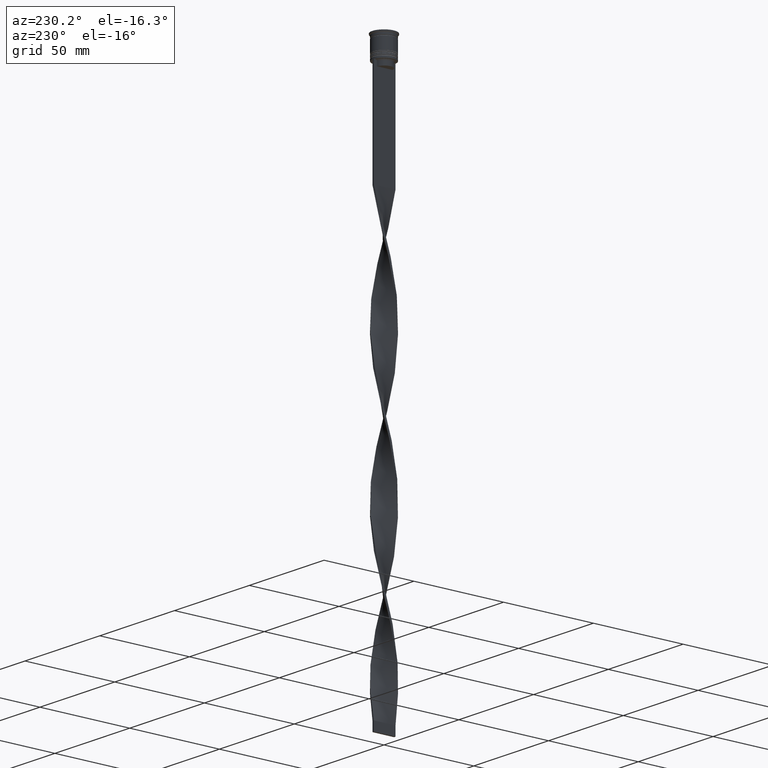
[diagram: clean part render]
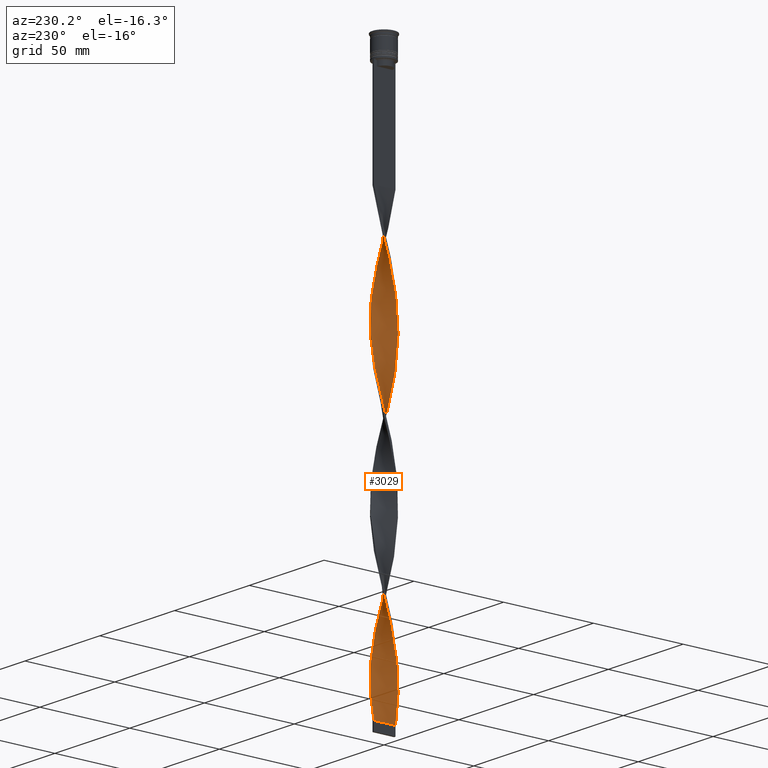
[diagram: same view with one face highlighted and labeled with its STEP entity id]
A machine part, auxiliary view. The second image highlights one B-rep face of the part: STEP entity #3029.
In plain terms, the highlighted face is a freeform B-spline surface patch.
Its self-contained STEP definition (entity closure, byte-faithful):
#3 = CARTESIAN_POINT ( 'NONE',  ( 5.393717298852748421, 2.717047055421897284, -201.9416666666667197 ) ) ;
#7 = CARTESIAN_POINT ( 'NONE',  ( -0.4999999999999994449, 5.999999999999999112, -307.5000000000000000 ) ) ;
#13 = CARTESIAN_POINT ( 'NONE',  ( -0.4999999999999994449, 5.999999999999999112, -307.5000000000000000 ) ) ;
#23 = CARTESIAN_POINT ( 'NONE',  ( -5.119043895260434240, 3.169446260531465498, -255.7166666666666970 ) ) ;
#37 = CARTESIAN_POINT ( 'NONE',  ( 2.278439736343096822, 5.573034394999980101, -295.5499999999999545 ) ) ;
#40 = CARTESIAN_POINT ( 'NONE',  ( -5.969343698769574047, 0.9173149989399200788, -182.0250000000000341 ) ) ;
#44 = CARTESIAN_POINT ( 'NONE',  ( -0.4447626199438162731, 6.004347276090943097, -72.48333333333334849 ) ) ;
#47 = CARTESIAN_POINT ( 'NONE',  ( -0.5000000000000009992, -6.000000000000000888, -307.5000000000000000 ) ) ;
#57 = CARTESIAN_POINT ( 'NONE',  ( -2.278439736343097710, -5.573034394999980101, -215.8833333333333542 ) ) ;
#61 = CARTESIAN_POINT ( 'NONE',  ( 1.839832417264293252, -5.752351491147218887, -158.1250000000000000 ) ) ;
#74 = CARTESIAN_POINT ( 'NONE',  ( 3.889087296526011261, 4.596194077712557835, -287.5833333333333712 ) ) ;
#78 = CARTESIAN_POINT ( 'NONE',  ( 0.4447626199438153849, -6.004347276090943097, -152.1500000000000057 ) ) ;
#97 = CARTESIAN_POINT ( 'NONE',  ( -5.847912811050710147, -1.432450960538953044, -191.9833333333333485 ) ) ;
#119 = CARTESIAN_POINT ( 'NONE',  ( -0.9722102409477118012, -5.960649146587693181, -146.1749999999999829 ) ) ;
#135 = CARTESIAN_POINT ( 'NONE',  ( 3.169446260531464610, -5.119043895260433352, -80.45000000000000284 ) ) ;
#138 = CARTESIAN_POINT ( 'NONE',  ( -0.4447626199438162731, 6.004347276090943097, -231.8166666666666629 ) ) ;
#157 = CARTESIAN_POINT ( 'NONE',  ( 2.766568768664325884, -5.368484725653162926, -78.45833333333334281 ) ) ;
#161 = CARTESIAN_POINT ( 'NONE',  ( -1.378573708102107664, 5.860847594958396023, -235.8000000000000114 ) ) ;
#169 = CARTESIAN_POINT ( 'NONE',  ( -5.368484725653164702, 2.766568768664326772, -98.37500000000001421 ) ) ;
#180 = CARTESIAN_POINT ( 'NONE',  ( 5.368484725653162926, -2.766568768664329436, -178.0416666666667140 ) ) ;
#186 = CARTESIAN_POINT ( 'NONE',  ( -2.329630224397262417, -5.551830600583448572, -140.1999999999999886 ) ) ;
#194 = CARTESIAN_POINT ( 'NONE',  ( -5.969343698769574935, 0.9173149989399200788, -182.0250000000000341 ) ) ;
#197 = CARTESIAN_POINT ( 'NONE',  ( -6.039350853412311260, 0.02778975905228984675, -269.6583333333334167 ) ) ;
#205 = CARTESIAN_POINT ( 'NONE',  ( -4.869603064867703779, 3.572323752398605556, -94.39166666666669414 ) ) ;
#215 = CARTESIAN_POINT ( 'NONE',  ( -5.119043895260434240, -3.169446260531463722, -199.9500000000000171 ) ) ;
#218 = CARTESIAN_POINT ( 'NONE',  ( -3.889087296526011706, 4.596194077712559611, -247.7500000000000284 ) ) ;
#240 = CARTESIAN_POINT ( 'NONE',  ( -1.432450960538953488, 5.847912811050710147, -152.1500000000000057 ) ) ;
#242 = CARTESIAN_POINT ( 'NONE',  ( 5.573034394999979213, -2.278439736343095934, -96.38333333333335418 ) ) ;
#257 = ORIENTED_EDGE ( 'NONE', *, *, #512, .F. ) ;
#260 = CARTESIAN_POINT ( 'NONE',  ( -0.4999999999999994449, 5.999999999999999112, -148.1666666666666572 ) ) ;
#262 = CARTESIAN_POINT ( 'NONE',  ( 5.147994592395920499, -3.122203016567364209, -92.40000000000000568 ) ) ;
#269 = CARTESIAN_POINT ( 'NONE',  ( 5.960649146587692293, -0.9722102409477147988, -186.0083333333333258 ) ) ;
#280 = CARTESIAN_POINT ( 'NONE',  ( 3.169446260531464610, -5.119043895260433352, -239.7833333333333599 ) ) ;
#284 = CARTESIAN_POINT ( 'NONE',  ( 5.368484725653162926, 2.766568768664325439, -118.2916666666666998 ) ) ;
#294 = CARTESIAN_POINT ( 'NONE',  ( -5.147994592395922275, -3.122203016567364653, -283.6000000000000227 ) ) ;
#306 = CARTESIAN_POINT ( 'NONE',  ( 3.122203016567365097, 5.147994592395919611, -132.2333333333333485 ) ) ;
#315 = CARTESIAN_POINT ( 'NONE',  ( -4.290116269486023093, -4.250815615339194053, -289.5750000000000455 ) ) ;
#325 = CARTESIAN_POINT ( 'NONE',  ( 5.735176475513731553, 1.892691680130197396, -273.6416666666666515 ) ) ;
#331 = VERTEX_POINT ( 'NONE', #3914 ) ;
#333 = CARTESIAN_POINT ( 'NONE',  ( 5.147994592395923164, 3.122203016567364209, -203.9333333333333655 ) ) ;
#341 = CARTESIAN_POINT ( 'NONE',  ( 3.889087296526011261, 4.596194077712557835, -287.5833333333333712 ) ) ;
#343 = CARTESIAN_POINT ( 'NONE',  ( 5.752351491147216223, -1.839832417264293918, -257.7083333333333144 ) ) ;
#347 = FACE_OUTER_BOUND ( 'NONE', #3536, .T. ) ;
#352 = CARTESIAN_POINT ( 'NONE',  ( 4.290116269486023981, 4.250815615339191389, -209.9083333333333599 ) ) ;
#371 = CARTESIAN_POINT ( 'NONE',  ( 3.931220010942312104, -4.560209340103447140, -243.7666666666666799 ) ) ;
#374 = CARTESIAN_POINT ( 'NONE',  ( -4.290116269486023093, -4.250815615339194053, -130.2416666666667027 ) ) ;
#377 = CARTESIAN_POINT ( 'NONE',  ( -0.9722102409477118012, -5.960649146587692293, -305.5083333333334394 ) ) ;
#386 = ORIENTED_EDGE ( 'NONE', *, *, #2012, .F. ) ;
#393 = CARTESIAN_POINT ( 'NONE',  ( 5.573034394999979213, -2.278439736343095934, -255.7166666666666970 ) ) ;
#396 = CARTESIAN_POINT ( 'NONE',  ( -3.169446260531465498, -5.119043895260433352, -136.2166666666666686 ) ) ;
#409 = CARTESIAN_POINT ( 'NONE',  ( 5.999999999999999112, 0.4999999999999998890, -267.6666666666667425 ) ) ;
#434 = CARTESIAN_POINT ( 'NONE',  ( 4.560209340103447140, 3.931220010942311216, -124.2666666666666799 ) ) ;
#451 = CARTESIAN_POINT ( 'NONE',  ( 0.9722102409477109131, -5.960649146587690517, -70.49166666666668846 ) ) ;
#453 = CARTESIAN_POINT ( 'NONE',  ( 5.960649146587693181, -0.9722102409477149099, -186.0083333333333258 ) ) ;
#467 = CARTESIAN_POINT ( 'NONE',  ( 5.860847594958394247, -1.378573708102107664, -100.3666666666666742 ) ) ;
#469 = CARTESIAN_POINT ( 'NONE',  ( -4.560209340103448916, 3.931220010942312992, -251.7333333333333769 ) ) ;
#491 = CARTESIAN_POINT ( 'NONE',  ( 4.869603064867703779, 3.572323752398604224, -122.2750000000000199 ) ) ;
#494 = CARTESIAN_POINT ( 'NONE',  ( 4.902271885939098794, 3.527358977712832910, -205.9250000000000114 ) ) ;
#502 = CARTESIAN_POINT ( 'NONE',  ( -5.960649146587692293, 0.9722102409477114682, -106.3416666666666686 ) ) ;
#511 = CARTESIAN_POINT ( 'NONE',  ( 3.122203016567365097, 5.147994592395919611, -132.2333333333333485 ) ) ;
#512 = EDGE_CURVE ( 'NONE', #2408, #331, #3768, .T. ) ;
#514 = CARTESIAN_POINT ( 'NONE',  ( 0.5000000000000002220, 6.000000000000000888, -227.8333333333333428 ) ) ;
#520 = CARTESIAN_POINT ( 'NONE',  ( -0.5000000000000009992, -6.000000000000000888, -148.1666666666666572 ) ) ;
#528 = CARTESIAN_POINT ( 'NONE',  ( -4.290116269486020428, 4.250815615339193165, -166.0916666666666970 ) ) ;
#530 = CARTESIAN_POINT ( 'NONE',  ( 6.039350853412311260, -0.02778975905228783447, -189.9916666666667027 ) ) ;
#539 = CARTESIAN_POINT ( 'NONE',  ( -1.378573708102107664, 5.860847594958396023, -76.46666666666666856 ) ) ;
#549 = CARTESIAN_POINT ( 'NONE',  ( 5.393717298852744868, -2.717047055421899948, -253.7250000000000227 ) ) ;
#552 = CARTESIAN_POINT ( 'NONE',  ( -1.892691680130197174, 5.735176475513731553, -154.1416666666666799 ) ) ;
#566 = CARTESIAN_POINT ( 'NONE',  ( 0.9173149989399214110, -5.969343698769576712, -154.1416666666666799 ) ) ;
#575 = CARTESIAN_POINT ( 'NONE',  ( 4.902271885939097906, -3.527358977712830246, -249.7416666666667027 ) ) ;
#577 = CARTESIAN_POINT ( 'NONE',  ( 0.9173149989399225213, 5.969343698769574047, -142.1916666666666913 ) ) ;
#585 = CARTESIAN_POINT ( 'NONE',  ( -3.527358977712831134, 4.902271885939099683, -245.7583333333333826 ) ) ;
#595 = CARTESIAN_POINT ( 'NONE',  ( 0.5000000000000002220, -5.999999999999999112, -227.8333333333333428 ) ) ;
#597 = CARTESIAN_POINT ( 'NONE',  ( 4.250815615339192277, 4.290116269486020428, -126.2583333333333258 ) ) ;
#604 = CARTESIAN_POINT ( 'NONE',  ( -5.573034394999981878, -2.278439736343096378, -279.6166666666666742 ) ) ;
#615 = CARTESIAN_POINT ( 'NONE',  ( 2.717047055421899948, 5.393717298852744868, -293.5583333333333940 ) ) ;
#618 = CARTESIAN_POINT ( 'NONE',  ( -0.9722102409477118012, -5.960649146587693181, -305.5083333333334963 ) ) ;
#627 = CARTESIAN_POINT ( 'NONE',  ( 4.902271885939098794, 3.527358977712832910, -205.9250000000000114 ) ) ;
#640 = CARTESIAN_POINT ( 'NONE',  ( 1.892691680130197840, -5.735176475513731553, -74.47500000000002274 ) ) ;
#649 = CARTESIAN_POINT ( 'NONE',  ( 0.9722102409477152429, 5.960649146587692293, -225.8416666666666970 ) ) ;
#661 = CARTESIAN_POINT ( 'NONE',  ( -6.004347276090940433, 0.4447626199438171057, -184.0166666666666515 ) ) ;
#666 = CARTESIAN_POINT ( 'NONE',  ( -5.573034394999981878, -2.278439736343096378, -120.2833333333333456 ) ) ;
#670 = CARTESIAN_POINT ( 'NONE',  ( 5.573034394999981878, 2.278439736343095934, -199.9500000000000171 ) ) ;
#677 = CARTESIAN_POINT ( 'NONE',  ( 3.122203016567365097, 5.147994592395919611, -291.5666666666667197 ) ) ;
#679 = CARTESIAN_POINT ( 'NONE',  ( 2.329630224397261085, -5.551830600583446795, -235.8000000000000114 ) ) ;
#683 = CARTESIAN_POINT ( 'NONE',  ( -1.432450960538955043, -5.847912811050711035, -144.1833333333333371 ) ) ;
#688 = CARTESIAN_POINT ( 'NONE',  ( -1.892691680130198728, -5.735176475513733330, -301.5250000000000341 ) ) ;
#700 = CARTESIAN_POINT ( 'NONE',  ( 5.847912811050710147, 1.432450960538953932, -271.6499999999999773 ) ) ;
#704 = CARTESIAN_POINT ( 'NONE',  ( 3.572323752398604224, -4.869603064867703779, -241.7750000000000625 ) ) ;
#707 = CARTESIAN_POINT ( 'NONE',  ( -4.250815615339194053, 4.290116269486022205, -90.40833333333334565 ) ) ;
#722 = CARTESIAN_POINT ( 'NONE',  ( 0.5000000000000002220, -5.999999999999999112, -227.8333333333333428 ) ) ;
#723 = CARTESIAN_POINT ( 'NONE',  ( 5.147994592395920499, -3.122203016567364209, -92.40000000000000568 ) ) ;
#739 = CARTESIAN_POINT ( 'NONE',  ( 5.860847594958394247, -1.378573708102107664, -259.7000000000000455 ) ) ;
#740 = CARTESIAN_POINT ( 'NONE',  ( 5.393717298852744868, -2.717047055421899948, -94.39166666666669414 ) ) ;
#744 = CARTESIAN_POINT ( 'NONE',  ( -6.039350853412311260, 0.02778975905228984675, -110.3250000000000171 ) ) ;
#767 = CARTESIAN_POINT ( 'NONE',  ( -1.839832417264293918, 5.752351491147217999, -237.7916666666667140 ) ) ;
#781 = CARTESIAN_POINT ( 'NONE',  ( 5.573034394999979213, -2.278439736343095934, -96.38333333333335418 ) ) ;
#783 = CARTESIAN_POINT ( 'NONE',  ( -3.527358977712831134, 4.902271885939099683, -245.7583333333333826 ) ) ;
#791 = CARTESIAN_POINT ( 'NONE',  ( 2.717047055421899060, -5.393717298852747533, -162.1083333333333769 ) ) ;
#802 = CARTESIAN_POINT ( 'NONE',  ( -4.290116269486023093, -4.250815615339194053, -289.5750000000000455 ) ) ;
#809 = CARTESIAN_POINT ( 'NONE',  ( -0.4447626199438162731, 6.004347276090943097, -72.48333333333334849 ) ) ;
#824 = CARTESIAN_POINT ( 'NONE',  ( -3.122203016567365541, -5.147994592395919611, -211.9000000000000057 ) ) ;
#827 = CARTESIAN_POINT ( 'NONE',  ( 3.169446260531466386, 5.119043895260433352, -215.8833333333333542 ) ) ;
#834 = CARTESIAN_POINT ( 'NONE',  ( -5.847912811050711923, 1.432450960538954821, -104.3499999999999943 ) ) ;
#843 = CARTESIAN_POINT ( 'NONE',  ( 4.596194077712558723, -3.889087296526011261, -247.7500000000000284 ) ) ;
#845 = CARTESIAN_POINT ( 'NONE',  ( -5.368484725653164702, 2.766568768664326772, -257.7083333333333144 ) ) ;
#853 = CARTESIAN_POINT ( 'NONE',  ( -1.892691680130198728, -5.735176475513733330, -142.1916666666666913 ) ) ;
#860 = ORIENTED_EDGE ( 'NONE', *, *, #1425, .T. ) ;
#862 = CARTESIAN_POINT ( 'NONE',  ( 1.432450960538954154, -5.847912811050710147, -231.8166666666666629 ) ) ;
#864 = CARTESIAN_POINT ( 'NONE',  ( -3.169446260531463722, 5.119043895260433352, -160.1166666666666742 ) ) ;
#872 = CARTESIAN_POINT ( 'NONE',  ( -1.839832417264293918, 5.752351491147217999, -78.45833333333334281 ) ) ;
#883 = CARTESIAN_POINT ( 'NONE',  ( 1.892691680130197840, -5.735176475513731553, -233.8083333333333371 ) ) ;
#888 = CARTESIAN_POINT ( 'NONE',  ( -5.393717298852745756, 2.717047055421897728, -174.0583333333333371 ) ) ;
#901 = CARTESIAN_POINT ( 'NONE',  ( 1.892691680130196952, 5.735176475513733330, -221.8583333333333769 ) ) ;
#910 = CARTESIAN_POINT ( 'NONE',  ( -4.560209340103448028, -3.931220010942310328, -203.9333333333333655 ) ) ;
#912 = CARTESIAN_POINT ( 'NONE',  ( 0.5000000000000002220, -5.999999999999999112, -68.50000000000000000 ) ) ;
#922 = CARTESIAN_POINT ( 'NONE',  ( -5.551830600583448572, 2.329630224397261973, -259.7000000000000455 ) ) ;
#933 = CARTESIAN_POINT ( 'NONE',  ( 4.596194077712558723, -3.889087296526011261, -88.41666666666667140 ) ) ;
#941 = CARTESIAN_POINT ( 'NONE',  ( 5.551830600583448572, -2.329630224397262417, -180.0333333333333599 ) ) ;
#953 = CARTESIAN_POINT ( 'NONE',  ( 6.004347276090941321, -0.4447626199438162731, -104.3499999999999943 ) ) ;
#964 = CARTESIAN_POINT ( 'NONE',  ( -5.393717298852747533, -2.717047055421899948, -281.6083333333334053 ) ) ;
#973 = CARTESIAN_POINT ( 'NONE',  ( 5.573034394999979213, -2.278439736343095934, -255.7166666666666970 ) ) ;
#976 = CARTESIAN_POINT ( 'NONE',  ( 4.596194077712558723, -3.889087296526011261, -247.7500000000000284 ) ) ;
#980 = CARTESIAN_POINT ( 'NONE',  ( -3.122203016567365541, 5.147994592395922275, -84.43333333333333712 ) ) ;
#983 = CARTESIAN_POINT ( 'NONE',  ( 5.752351491147217111, 1.839832417264295694, -197.9583333333333712 ) ) ;
#995 = CARTESIAN_POINT ( 'NONE',  ( 5.969343698769574047, -0.9173149989399220772, -261.6916666666666629 ) ) ;
#999 = CARTESIAN_POINT ( 'NONE',  ( -4.902271885939099683, -3.527358977712830246, -126.2583333333333258 ) ) ;
#1013 = CARTESIAN_POINT ( 'NONE',  ( -6.039350853412309483, -0.02778975905228582913, -186.0083333333333258 ) ) ;
#1037 = CARTESIAN_POINT ( 'NONE',  ( -5.551830600583447684, -2.329630224397259752, -195.9666666666666686 ) ) ;
#1040 = CARTESIAN_POINT ( 'NONE',  ( -1.378573708102107664, 5.860847594958396023, -76.46666666666666856 ) ) ;
#1055 = CARTESIAN_POINT ( 'NONE',  ( -5.368484725653162037, -2.766568768664326772, -197.9583333333333997 ) ) ;
#1058 = CARTESIAN_POINT ( 'NONE',  ( -1.839832417264293918, 5.752351491147217999, -78.45833333333332860 ) ) ;
#1077 = CARTESIAN_POINT ( 'NONE',  ( -5.551830600583448572, 2.329630224397261973, -259.7000000000000455 ) ) ;
#1101 = CARTESIAN_POINT ( 'NONE',  ( 3.931220010942314769, 4.560209340103448028, -211.9000000000000057 ) ) ;
#1116 = CARTESIAN_POINT ( 'NONE',  ( 6.039350853412309483, 0.02778975905228925000, -106.3416666666666686 ) ) ;
#1119 = CARTESIAN_POINT ( 'NONE',  ( -3.122203016567365541, 5.147994592395922275, -243.7666666666666799 ) ) ;
#1125 = CARTESIAN_POINT ( 'NONE',  ( -5.860847594958396911, -1.378573708102107220, -116.3000000000000114 ) ) ;
#1134 = CARTESIAN_POINT ( 'NONE',  ( 2.278439736343096822, 5.573034394999980101, -136.2166666666666686 ) ) ;
#1136 = CARTESIAN_POINT ( 'NONE',  ( -6.004347276090943097, -0.4447626199438159400, -271.6499999999999773 ) ) ;
#1145 = CARTESIAN_POINT ( 'NONE',  ( -5.969343698769576712, -0.9173149989399216331, -114.3083333333333655 ) ) ;
#1156 = CARTESIAN_POINT ( 'NONE',  ( 0.9722102409477109131, -5.960649146587690517, -229.8250000000000171 ) ) ;
#1159 = CARTESIAN_POINT ( 'NONE',  ( 2.766568768664329880, 5.368484725653162926, -217.8750000000000568 ) ) ;
#1162 = DIRECTION ( 'NONE',  ( 0.000000000000000000, 1.000000000000000000, 0.000000000000000000 ) ) ;
#1168 = CARTESIAN_POINT ( 'NONE',  ( -2.766568768664327216, -5.368484725653164702, -138.2083333333333144 ) ) ;
#1169 = CARTESIAN_POINT ( 'NONE',  ( -0.5000000000000009992, -6.000000000000000888, -307.5000000000000000 ) ) ;
#1178 = CARTESIAN_POINT ( 'NONE',  ( -0.02778975905228881632, 6.039350853412309483, -146.1750000000000114 ) ) ;
#1180 = CARTESIAN_POINT ( 'NONE',  ( 3.931220010942312104, -4.560209340103447140, -84.43333333333333712 ) ) ;
#1188 = CARTESIAN_POINT ( 'NONE',  ( -2.717047055421899948, 5.393717298852747533, -82.44166666666667709 ) ) ;
#1197 = CARTESIAN_POINT ( 'NONE',  ( -3.527358977712832910, -4.902271885939095242, -209.9083333333333599 ) ) ;
#1200 = CARTESIAN_POINT ( 'NONE',  ( -3.572323752398603336, 4.869603064867703779, -162.1083333333333769 ) ) ;
#1207 = CARTESIAN_POINT ( 'NONE',  ( -0.4447626199438162731, 6.004347276090943097, -231.8166666666666629 ) ) ;
#1217 = CARTESIAN_POINT ( 'NONE',  ( -5.551830600583447684, -2.329630224397259752, -195.9666666666666686 ) ) ;
#1221 = CARTESIAN_POINT ( 'NONE',  ( -4.902271885939096130, 3.527358977712832910, -170.0750000000000455 ) ) ;
#1232 = CARTESIAN_POINT ( 'NONE',  ( 6.004347276090943097, 0.4447626199438150518, -191.9833333333333485 ) ) ;
#1241 = CARTESIAN_POINT ( 'NONE',  ( 5.551830600583447684, 2.329630224397260641, -116.3000000000000114 ) ) ;
#1249 = CARTESIAN_POINT ( 'NONE',  ( -0.9173149989399220772, 5.969343698769576712, -233.8083333333333371 ) ) ;
#1260 = CARTESIAN_POINT ( 'NONE',  ( 4.560209340103447140, 3.931220010942311216, -124.2666666666666799 ) ) ;
#1268 = CARTESIAN_POINT ( 'NONE',  ( -3.122203016567365541, 5.147994592395922275, -243.7666666666666799 ) ) ;
#1278 = CARTESIAN_POINT ( 'NONE',  ( 5.969343698769574935, -0.9173149989399220772, -261.6916666666666629 ) ) ;
#1281 = CARTESIAN_POINT ( 'NONE',  ( -0.02778975905228881632, 6.039350853412309483, -305.5083333333334963 ) ) ;
#1290 = CARTESIAN_POINT ( 'NONE',  ( -5.847912811050711923, 1.432450960538954821, -263.6833333333333940 ) ) ;
#1301 = CARTESIAN_POINT ( 'NONE',  ( 4.250815615339192277, 4.290116269486020428, -285.5916666666666970 ) ) ;
#1304 = CARTESIAN_POINT ( 'NONE',  ( -3.527358977712832910, -4.902271885939095242, -209.9083333333333883 ) ) ;
#1311 = CARTESIAN_POINT ( 'NONE',  ( -2.766568768664327216, -5.368484725653164702, -297.5416666666666856 ) ) ;
#1321 = CARTESIAN_POINT ( 'NONE',  ( 4.869603064867703779, 3.572323752398604224, -281.6083333333334622 ) ) ;
#1325 = CARTESIAN_POINT ( 'NONE',  ( 2.717047055421899060, -5.393717298852746644, -162.1083333333333769 ) ) ;
#1339 = CARTESIAN_POINT ( 'NONE',  ( 3.122203016567365097, 5.147994592395919611, -291.5666666666667197 ) ) ;
#1362 = CARTESIAN_POINT ( 'NONE',  ( 5.119043895260433352, 3.169446260531464610, -279.6166666666666742 ) ) ;
#1363 = CARTESIAN_POINT ( 'NONE',  ( 4.290116269486021316, -4.250815615339192277, -86.42499999999999716 ) ) ;
#1365 = CARTESIAN_POINT ( 'NONE',  ( -5.368484725653164702, 2.766568768664326772, -98.37500000000002842 ) ) ;
#1383 = CARTESIAN_POINT ( 'NONE',  ( -5.147994592395922275, -3.122203016567364653, -124.2666666666666799 ) ) ;
#1400 = CARTESIAN_POINT ( 'NONE',  ( 5.969343698769574935, -0.9173149989399220772, -102.3583333333333485 ) ) ;
#1403 = CARTESIAN_POINT ( 'NONE',  ( -5.147994592395922275, -3.122203016567364653, -283.6000000000000227 ) ) ;
#1424 = CARTESIAN_POINT ( 'NONE',  ( 5.735176475513731553, 1.892691680130197396, -114.3083333333333655 ) ) ;
#1425 = EDGE_CURVE ( 'NONE', #3540, #331, #2397, .T. ) ;
#1427 = CARTESIAN_POINT ( 'NONE',  ( -5.860847594958396911, -1.378573708102107220, -275.6333333333333258 ) ) ;
#1433 = CARTESIAN_POINT ( 'NONE',  ( -3.931220010942313881, -4.560209340103448028, -132.2333333333333485 ) ) ;
#1443 = CARTESIAN_POINT ( 'NONE',  ( -6.000000000000000888, 0.5000000000000005551, -267.6666666666667425 ) ) ;
#1458 = CARTESIAN_POINT ( 'NONE',  ( -2.717047055421898172, -5.393717298852745756, -213.8916666666666799 ) ) ;
#1460 = CARTESIAN_POINT ( 'NONE',  ( 1.892691680130196952, 5.735176475513733330, -221.8583333333333769 ) ) ;
#1485 = CARTESIAN_POINT ( 'NONE',  ( -0.4447626199438174388, -6.004347276090940433, -223.8500000000000227 ) ) ;
#1488 = CARTESIAN_POINT ( 'NONE',  ( -0.5000000000000009992, -6.000000000000000888, -307.5000000000000000 ) ) ;
#1506 = CARTESIAN_POINT ( 'NONE',  ( 3.931220010942312104, -4.560209340103447140, -243.7666666666666799 ) ) ;
#1508 = CARTESIAN_POINT ( 'NONE',  ( 5.847912811050710147, 1.432450960538953932, -112.3166666666666771 ) ) ;
#1515 = CARTESIAN_POINT ( 'NONE',  ( -6.000000000000000888, 0.5000000000000005551, -108.3333333333333428 ) ) ;
#1526 = CARTESIAN_POINT ( 'NONE',  ( -2.329630224397260196, 5.551830600583447684, -156.1333333333333542 ) ) ;
#1528 = CARTESIAN_POINT ( 'NONE',  ( 4.902271885939097906, -3.527358977712830246, -90.40833333333334565 ) ) ;
#1536 = CARTESIAN_POINT ( 'NONE',  ( 2.329630224397263305, 5.551830600583448572, -219.8666666666666742 ) ) ;
#1548 = CARTESIAN_POINT ( 'NONE',  ( -4.596194077712557835, 3.889087296526011706, -168.0833333333333712 ) ) ;
#1551 = CARTESIAN_POINT ( 'NONE',  ( -2.766568768664327216, -5.368484725653164702, -297.5416666666666856 ) ) ;
#1560 = CARTESIAN_POINT ( 'NONE',  ( -4.902271885939099683, -3.527358977712830246, -285.5916666666666970 ) ) ;
#1570 = CARTESIAN_POINT ( 'NONE',  ( 2.717047055421899948, 5.393717298852743980, -134.2249999999999943 ) ) ;
#1579 = CARTESIAN_POINT ( 'NONE',  ( -3.931220010942313881, -4.560209340103448028, -291.5666666666667197 ) ) ;
#1588 = CARTESIAN_POINT ( 'NONE',  ( 5.999999999999999112, 0.4999999999999998890, -267.6666666666667425 ) ) ;
#1590 = CARTESIAN_POINT ( 'NONE',  ( -5.735176475513732441, -1.892691680130194065, -193.9749999999999943 ) ) ;
#1599 = CARTESIAN_POINT ( 'NONE',  ( -2.717047055421899948, 5.393717298852747533, -241.7750000000000341 ) ) ;
#1610 = CARTESIAN_POINT ( 'NONE',  ( 5.752351491147216223, -1.839832417264293918, -257.7083333333333144 ) ) ;
#1613 = CARTESIAN_POINT ( 'NONE',  ( 5.960649146587691405, 0.9722102409477105800, -269.6583333333334167 ) ) ;
#1620 = VECTOR ( 'NONE', #1162, 1000.000000000000000 ) ;
#1623 = CARTESIAN_POINT ( 'NONE',  ( 5.119043895260433352, -3.169446260531466386, -176.0500000000000114 ) ) ;
#1638 = CARTESIAN_POINT ( 'NONE',  ( 6.004347276090941321, -0.4447626199438162731, -263.6833333333333940 ) ) ;
#1642 = CARTESIAN_POINT ( 'NONE',  ( -5.960649146587693181, 0.9722102409477114682, -106.3416666666666686 ) ) ;
#1659 = CARTESIAN_POINT ( 'NONE',  ( 5.368484725653162926, 2.766568768664325439, -277.6250000000000568 ) ) ;
#1663 = CARTESIAN_POINT ( 'NONE',  ( -6.004347276090943097, -0.4447626199438159400, -112.3166666666666771 ) ) ;
#1677 = CARTESIAN_POINT ( 'NONE',  ( -2.717047055421898172, -5.393717298852744868, -213.8916666666666799 ) ) ;
#1704 = CARTESIAN_POINT ( 'NONE',  ( 4.250815615339192277, 4.290116269486020428, -126.2583333333333400 ) ) ;
#1707 = CARTESIAN_POINT ( 'NONE',  ( 0.5000000000000002220, 6.000000000000000888, -68.50000000000000000 ) ) ;
#1725 = CARTESIAN_POINT ( 'NONE',  ( 0.9722102409477153540, 5.960649146587693181, -225.8416666666666970 ) ) ;
#1739 = CARTESIAN_POINT ( 'NONE',  ( 5.960649146587690517, 0.9722102409477104690, -110.3250000000000171 ) ) ;
#1741 = CARTESIAN_POINT ( 'NONE',  ( -3.931220010942313881, -4.560209340103448028, -291.5666666666667197 ) ) ;
#1749 = CARTESIAN_POINT ( 'NONE',  ( -3.527358977712831134, 4.902271885939099683, -86.42499999999999716 ) ) ;
#1763 = CARTESIAN_POINT ( 'NONE',  ( 3.931220010942312104, -4.560209340103447140, -84.43333333333333712 ) ) ;
#1765 = CARTESIAN_POINT ( 'NONE',  ( -0.9173149989399220772, 5.969343698769575823, -233.8083333333333371 ) ) ;
#1772 = CARTESIAN_POINT ( 'NONE',  ( -5.573034394999981878, -2.278439736343096378, -120.2833333333333456 ) ) ;
#1782 = CARTESIAN_POINT ( 'NONE',  ( -5.752351491147214446, 1.839832417264296804, -178.0416666666667140 ) ) ;
#1784 = CARTESIAN_POINT ( 'NONE',  ( -2.717047055421899948, 5.393717298852746644, -241.7750000000000625 ) ) ;
#1800 = CARTESIAN_POINT ( 'NONE',  ( -5.860847594958394247, 1.378573708102108331, -180.0333333333333599 ) ) ;
#1803 = CARTESIAN_POINT ( 'NONE',  ( 5.735176475513733330, -1.892691680130196730, -182.0250000000000341 ) ) ;
#1812 = CARTESIAN_POINT ( 'NONE',  ( -2.278439736343096378, 5.573034394999981878, -80.45000000000000284 ) ) ;
#1821 = CARTESIAN_POINT ( 'NONE',  ( 1.378573708102107886, 5.860847594958394247, -140.1999999999999886 ) ) ;
#1824 = CARTESIAN_POINT ( 'NONE',  ( 3.572323752398604224, -4.869603064867703779, -82.44166666666666288 ) ) ;
#1833 = CARTESIAN_POINT ( 'NONE',  ( 2.278439736343095934, -5.573034394999981878, -160.1166666666666742 ) ) ;
#1841 = CARTESIAN_POINT ( 'NONE',  ( -3.931220010942311216, 4.560209340103447140, -164.1000000000000227 ) ) ;
#1843 = CARTESIAN_POINT ( 'NONE',  ( 5.969343698769574047, -0.9173149989399220772, -102.3583333333333343 ) ) ;
#1850 = CARTESIAN_POINT ( 'NONE',  ( -4.250815615339194053, 4.290116269486022205, -249.7416666666667027 ) ) ;
#1860 = CARTESIAN_POINT ( 'NONE',  ( -4.869603064867703779, -3.572323752398602004, -201.9416666666667197 ) ) ;
#1862 = CARTESIAN_POINT ( 'NONE',  ( -5.860847594958394247, 1.378573708102108331, -180.0333333333333599 ) ) ;
#1870 = CARTESIAN_POINT ( 'NONE',  ( 5.368484725653162926, -2.766568768664329436, -178.0416666666667140 ) ) ;
#1882 = CARTESIAN_POINT ( 'NONE',  ( 5.368484725653162926, 2.766568768664325439, -277.6250000000000568 ) ) ;
#1886 = CARTESIAN_POINT ( 'NONE',  ( 6.039350853412309483, 0.02778975905228925000, -106.3416666666666686 ) ) ;
#1895 = CARTESIAN_POINT ( 'NONE',  ( -5.960649146587692293, 0.9722102409477114682, -265.6750000000000682 ) ) ;
#1906 = CARTESIAN_POINT ( 'NONE',  ( 5.119043895260433352, 3.169446260531464610, -120.2833333333333456 ) ) ;
#1916 = CARTESIAN_POINT ( 'NONE',  ( -6.000000000000000888, 0.5000000000000005551, -267.6666666666667425 ) ) ;
#1925 = CARTESIAN_POINT ( 'NONE',  ( 1.839832417264293918, 5.752351491147216223, -297.5416666666666856 ) ) ;
#1927 = CARTESIAN_POINT ( 'NONE',  ( -4.560209340103448028, -3.931220010942310328, -203.9333333333333655 ) ) ;
#1933 = CARTESIAN_POINT ( 'NONE',  ( 0.02778975905228941307, 6.039350853412311260, -70.49166666666670267 ) ) ;
#1936 = CARTESIAN_POINT ( 'NONE',  ( 4.560209340103448028, -3.931220010942313881, -172.0666666666666629 ) ) ;
#1946 = CARTESIAN_POINT ( 'NONE',  ( 6.004347276090941321, -0.4447626199438162731, -263.6833333333333940 ) ) ;
#1949 = CARTESIAN_POINT ( 'NONE',  ( 5.551830600583447684, 2.329630224397260641, -275.6333333333333258 ) ) ;
#1954 = CARTESIAN_POINT ( 'NONE',  ( -0.02778975905229016594, -6.039350853412311260, -150.1583333333333599 ) ) ;
#1971 = CARTESIAN_POINT ( 'NONE',  ( 4.869603064867703779, 3.572323752398604224, -281.6083333333334053 ) ) ;
#1974 = CARTESIAN_POINT ( 'NONE',  ( 4.290116269486021316, -4.250815615339192277, -245.7583333333333826 ) ) ;
#1977 = CARTESIAN_POINT ( 'NONE',  ( -4.869603064867704667, 3.572323752398605556, -94.39166666666669414 ) ) ;
#1993 = CARTESIAN_POINT ( 'NONE',  ( -5.960649146587691405, -0.9722102409477125784, -189.9916666666667027 ) ) ;
#1996 = CARTESIAN_POINT ( 'NONE',  ( -4.560209340103448916, 3.931220010942312992, -92.40000000000000568 ) ) ;
#2010 = CARTESIAN_POINT ( 'NONE',  ( -5.999999999999999112, -0.4999999999999991673, -188.0000000000000000 ) ) ;
#2012 = EDGE_CURVE ( 'NONE', #2466, #2408, #3954, .T. ) ;
#2013 = CARTESIAN_POINT ( 'NONE',  ( 5.752351491147216223, -1.839832417264293918, -98.37500000000001421 ) ) ;
#2016 = CARTESIAN_POINT ( 'NONE',  ( -5.393717298852746644, -2.717047055421899948, -122.2750000000000341 ) ) ;
#2041 = CARTESIAN_POINT ( 'NONE',  ( 6.004347276090943097, 0.4447626199438150518, -191.9833333333333485 ) ) ;
#2054 = CARTESIAN_POINT ( 'NONE',  ( -0.5000000000000004441, -2.000000000000000888, -307.5000000000000000 ) ) ;
#2055 = CARTESIAN_POINT ( 'NONE',  ( 5.999999999999999112, 0.4999999999999998890, -108.3333333333333428 ) ) ;
#2057 = CARTESIAN_POINT ( 'NONE',  ( 5.847912811050711035, -1.432450960538955265, -184.0166666666666515 ) ) ;
#2065 = CARTESIAN_POINT ( 'NONE',  ( 3.122203016567364653, -5.147994592395922275, -164.1000000000000227 ) ) ;
#2074 = CARTESIAN_POINT ( 'NONE',  ( 6.004347276090941321, -0.4447626199438162731, -104.3499999999999943 ) ) ;
#2077 = CARTESIAN_POINT ( 'NONE',  ( 5.119043895260433352, -3.169446260531466386, -176.0500000000000114 ) ) ;
#2079 = CARTESIAN_POINT ( 'NONE',  ( 0.5000000000000002220, -6.000000000000000000, -68.50000000000000000 ) ) ;
#2085 = CARTESIAN_POINT ( 'NONE',  ( -0.9722102409477118012, -5.960649146587692293, -146.1750000000000114 ) ) ;
#2099 = CARTESIAN_POINT ( 'NONE',  ( -5.847912811050710147, -1.432450960538953044, -191.9833333333333485 ) ) ;
#2101 = CARTESIAN_POINT ( 'NONE',  ( 2.329630224397263305, 5.551830600583448572, -219.8666666666666742 ) ) ;
#2107 = CARTESIAN_POINT ( 'NONE',  ( -0.9173149989399220772, 5.969343698769576712, -74.47500000000000853 ) ) ;
#2116 = CARTESIAN_POINT ( 'NONE',  ( 3.527358977712831134, 4.902271885939097906, -130.2416666666667027 ) ) ;
#2119 = CARTESIAN_POINT ( 'NONE',  ( 5.752351491147217111, 1.839832417264295694, -197.9583333333333997 ) ) ;
#2127 = CARTESIAN_POINT ( 'NONE',  ( 0.5000000000000002220, 6.000000000000000888, -68.50000000000000000 ) ) ;
#2135 = CARTESIAN_POINT ( 'NONE',  ( -4.902271885939096130, 3.527358977712832910, -170.0750000000000455 ) ) ;
#2137 = CARTESIAN_POINT ( 'NONE',  ( 5.960649146587691405, 0.9722102409477105800, -110.3250000000000171 ) ) ;
#2146 = CARTESIAN_POINT ( 'NONE',  ( -0.02778975905229016594, -6.039350853412312148, -150.1583333333333599 ) ) ;
#2158 = CARTESIAN_POINT ( 'NONE',  ( 2.329630224397261085, -5.551830600583446795, -235.8000000000000114 ) ) ;
#2161 = CARTESIAN_POINT ( 'NONE',  ( -2.329630224397262417, -5.551830600583448572, -299.5333333333333030 ) ) ;
#2170 = CARTESIAN_POINT ( 'NONE',  ( -1.839832417264293918, 5.752351491147217999, -237.7916666666667140 ) ) ;
#2179 = CARTESIAN_POINT ( 'NONE',  ( -0.9173149989399203008, -5.969343698769574935, -221.8583333333333769 ) ) ;
#2181 = CARTESIAN_POINT ( 'NONE',  ( -5.573034394999980101, 2.278439736343096822, -176.0500000000000114 ) ) ;
#2190 = CARTESIAN_POINT ( 'NONE',  ( -5.860847594958396911, -1.378573708102107220, -275.6333333333333258 ) ) ;
#2201 = CARTESIAN_POINT ( 'NONE',  ( -3.169446260531465498, -5.119043895260433352, -295.5499999999999545 ) ) ;
#2208 = CARTESIAN_POINT ( 'NONE',  ( 5.860847594958396911, 1.378573708102106554, -195.9666666666666686 ) ) ;
#2223 = CARTESIAN_POINT ( 'NONE',  ( 1.432450960538954154, -5.847912811050710147, -72.48333333333334849 ) ) ;
#2233 = CARTESIAN_POINT ( 'NONE',  ( -4.560209340103448916, 3.931220010942312992, -251.7333333333333769 ) ) ;
#2242 = CARTESIAN_POINT ( 'NONE',  ( 6.039350853412309483, 0.02778975905228925000, -265.6750000000000682 ) ) ;
#2246 = CARTESIAN_POINT ( 'NONE',  ( -1.378573708102108997, -5.860847594958394247, -219.8666666666666742 ) ) ;
#2251 = CARTESIAN_POINT ( 'NONE',  ( -5.969343698769575823, -0.9173149989399215221, -114.3083333333333655 ) ) ;
#2255 = CARTESIAN_POINT ( 'NONE',  ( -3.169446260531465498, -5.119043895260433352, -295.5499999999999545 ) ) ;
#2263 = CARTESIAN_POINT ( 'NONE',  ( -0.4999999999999994449, 5.999999999999999112, -307.5000000000000000 ) ) ;
#2267 = CARTESIAN_POINT ( 'NONE',  ( 5.847912811050710147, 1.432450960538953932, -271.6499999999999773 ) ) ;
#2274 = CARTESIAN_POINT ( 'NONE',  ( -2.329630224397262417, -5.551830600583448572, -140.1999999999999886 ) ) ;
#2277 = CARTESIAN_POINT ( 'NONE',  ( -2.329630224397262417, -5.551830600583448572, -299.5333333333333030 ) ) ;
#2289 = CARTESIAN_POINT ( 'NONE',  ( -3.889087296526011706, -4.596194077712557835, -207.9166666666666572 ) ) ;
#2313 = CARTESIAN_POINT ( 'NONE',  ( -1.839832417264297026, -5.752351491147214446, -217.8750000000000568 ) ) ;
#2316 = CARTESIAN_POINT ( 'NONE',  ( -1.892691680130198728, -5.735176475513733330, -142.1916666666666913 ) ) ;
#2329 = CARTESIAN_POINT ( 'NONE',  ( 1.378573708102107886, 5.860847594958394247, -299.5333333333333030 ) ) ;
#2330 = CARTESIAN_POINT ( 'NONE',  ( 4.596194077712558723, -3.889087296526011261, -88.41666666666667140 ) ) ;
#2333 = CARTESIAN_POINT ( 'NONE',  ( -3.527358977712831134, 4.902271885939099683, -86.42499999999999716 ) ) ;
#2348 = CARTESIAN_POINT ( 'NONE',  ( 3.572323752398604224, -4.869603064867703779, -82.44166666666667709 ) ) ;
#2352 = CARTESIAN_POINT ( 'NONE',  ( -5.847912811050711923, 1.432450960538954821, -263.6833333333333940 ) ) ;
#2371 = CARTESIAN_POINT ( 'NONE',  ( 1.432450960538954154, -5.847912811050710147, -72.48333333333334849 ) ) ;
#2373 = CARTESIAN_POINT ( 'NONE',  ( -4.596194077712559611, -3.889087296526011706, -287.5833333333333712 ) ) ;
#2381 = CARTESIAN_POINT ( 'NONE',  ( -4.250815615339194053, 4.290116269486022205, -90.40833333333335986 ) ) ;
#2389 = CARTESIAN_POINT ( 'NONE',  ( 5.551830600583447684, 2.329630224397260641, -116.3000000000000114 ) ) ;
#2392 = CARTESIAN_POINT ( 'NONE',  ( 3.572323752398604224, 4.869603064867705555, -213.8916666666666799 ) ) ;
#2397 =( BOUNDED_CURVE ( )  B_SPLINE_CURVE ( 2, ( #3258, #451, #2371, #3916, #2987, #157, #135, #2348, #1763, #1363, #2330, #3591, #723, #740, #781, #2013, #467, #1400, #2074, #1116, #2055, #1739, #2679, #1424, #2389, #3280, #3338, #491, #434, #1704, #4061, #2116, #511, #3109, #1134, #2736, #1821, #2762, #3362, #1178, #260, #3045, #240, #2497, #1526, #2801, #4020, #3996, #1841, #528, #1548, #2135, #2473, #2454, #2782, #1782, #1800, #194, #4040, #3063, #3724, #3665, #2099, #3705, #1217, #3752, #215, #1860, #910, #3089, #2409, #1197, #824, #1458, #3443, #2824, #2434, #2179, #1485, #3424, #595, #1156, #862, #883, #2158, #3127, #280, #3687, #1506, #3396, #843, #575, #3379, #549, #973, #1610, #3171, #1278, #1946, #2242, #1588, #2884, #700, #3235, #3487, #1882, #2557, #1971, #3462, #1301, #341, #3547, #677, #615, #37, #1925, #3834, #3507, #2536, #3814, #2263 ),
 .UNSPECIFIED., .F., .T. ) 
 B_SPLINE_CURVE_WITH_KNOTS ( ( 3, 2, 2, 2, 2, 2, 2, 2, 2, 2, 2, 2, 2, 2, 2, 2, 2, 2, 2, 2, 2, 2, 2, 2, 2, 2, 2, 2, 2, 2, 2, 2, 2, 2, 2, 2, 2, 2, 2, 2, 2, 2, 2, 2, 2, 2, 2, 2, 2, 2, 2, 2, 2, 2, 2, 2, 2, 2, 2, 2, 3 ),
 ( 0.000000000000000000, 0.01250000000000000243, 0.02500000000000000486, 0.03749999999999999861, 0.05000000000000000971, 0.06250000000000000000, 0.07499999999999999722, 0.08749999999999998057, 0.1000000000000000194, 0.1125000000000000028, 0.1250000000000000000, 0.1375000000000000111, 0.1499999999999999944, 0.1625000000000000056, 0.1749999999999999611, 0.1875000000000000000, 0.2000000000000000389, 0.2124999999999999944, 0.2250000000000000056, 0.2374999999999999611, 0.2500000000000000000, 0.2625000000000000111, 0.2750000000000000222, 0.2874999999999999778, 0.2999999999999999889, 0.3125000000000000000, 0.3250000000000000111, 0.3375000000000000777, 0.3499999999999999223, 0.3624999999999999889, 0.3750000000000000000, 0.3875000000000000111, 0.4000000000000000777, 0.4124999999999999223, 0.4249999999999999889, 0.4375000000000000000, 0.4500000000000000111, 0.4625000000000000777, 0.4749999999999999223, 0.4874999999999999889, 0.5000000000000000000, 0.5124999999999999556, 0.5250000000000000222, 0.5374999999999999778, 0.5500000000000000444, 0.5625000000000000000, 0.5749999999999999556, 0.5875000000000000222, 0.5999999999999999778, 0.6125000000000000444, 0.6250000000000000000, 0.6374999999999999556, 0.6500000000000000222, 0.6624999999999999778, 0.6750000000000001554, 0.6875000000000000000, 0.6999999999999998446, 0.7125000000000000222, 0.7249999999999999778, 0.7375000000000001554, 0.7500000000000000000 ),
 .UNSPECIFIED. ) 
 CURVE ( )  GEOMETRIC_REPRESENTATION_ITEM ( )  RATIONAL_B_SPLINE_CURVE ( ( 1.000000000000000000, 0.9969173337331279638, 1.000000000000000000, 0.9969173337331279638, 1.000000000000000000, 0.9969173337331279638, 1.000000000000000000, 0.9969173337331279638, 1.000000000000000000, 0.9969173337331279638, 1.000000000000000000, 0.9969173337331279638, 1.000000000000000000, 0.9969173337331279638, 1.000000000000000000, 0.9969173337331279638, 1.000000000000000000, 0.9969173337331279638, 1.000000000000000000, 0.9969173337331279638, 1.000000000000000000, 0.9969173337331279638, 1.000000000000000000, 0.9969173337331279638, 1.000000000000000000, 0.9969173337331279638, 1.000000000000000000, 0.9969173337331279638, 1.000000000000000000, 0.9969173337331279638, 1.000000000000000000, 0.9969173337331279638, 1.000000000000000000, 0.9969173337331279638, 1.000000000000000000, 0.9969173337331279638, 1.000000000000000000, 0.9969173337331279638, 1.000000000000000000, 0.9969173337331279638, 1.000000000000000000, 0.9969173337331279638, 1.000000000000000000, 0.9969173337331279638, 1.000000000000000000, 0.9969173337331279638, 1.000000000000000000, 0.9969173337331279638, 1.000000000000000000, 0.9969173337331279638, 1.000000000000000000, 0.9969173337331279638, 1.000000000000000000, 0.9969173337331279638, 1.000000000000000000, 0.9969173337331279638, 1.000000000000000000, 0.9969173337331279638, 1.000000000000000000, 0.9969173337331279638, 1.000000000000000000, 0.9969173337331279638, 1.000000000000000000, 0.9969173337331279638, 1.000000000000000000, 0.9969173337331279638, 1.000000000000000000, 0.9969173337331279638, 1.000000000000000000, 0.9969173337331279638, 1.000000000000000000, 0.9969173337331279638, 1.000000000000000000, 0.9969173337331279638, 1.000000000000000000, 0.9969173337331279638, 1.000000000000000000, 0.9969173337331279638, 1.000000000000000000, 0.9969173337331279638, 1.000000000000000000, 0.9969173337331279638, 1.000000000000000000, 0.9969173337331279638, 1.000000000000000000, 0.9969173337331279638, 1.000000000000000000, 0.9969173337331279638, 1.000000000000000000, 0.9969173337331279638, 1.000000000000000000, 0.9969173337331279638, 1.000000000000000000, 0.9969173337331279638, 1.000000000000000000, 0.9969173337331279638, 1.000000000000000000, 0.9969173337331279638, 1.000000000000000000, 0.9969173337331279638, 1.000000000000000000, 0.9969173337331279638, 1.000000000000000000, 0.9969173337331279638, 1.000000000000000000, 0.9969173337331279638, 1.000000000000000000, 0.9969173337331279638, 1.000000000000000000, 0.9969173337331279638, 1.000000000000000000, 0.9969173337331279638, 1.000000000000000000, 0.9969173337331279638, 1.000000000000000000, 0.9969173337331279638, 1.000000000000000000, 0.9969173337331279638, 1.000000000000000000, 0.9969173337331279638, 1.000000000000000000 ) ) 
 REPRESENTATION_ITEM ( '' )  );
#2400 = CARTESIAN_POINT ( 'NONE',  ( 3.527358977712829802, -4.902271885939099683, -166.0916666666666970 ) ) ;
#2408 = VERTEX_POINT ( 'NONE', #1169 ) ;
#2409 = CARTESIAN_POINT ( 'NONE',  ( -3.889087296526011706, -4.596194077712557835, -207.9166666666666572 ) ) ;
#2411 = CARTESIAN_POINT ( 'NONE',  ( 4.596194077712559611, 3.889087296526010817, -207.9166666666666572 ) ) ;
#2419 = CARTESIAN_POINT ( 'NONE',  ( -5.551830600583448572, 2.329630224397261973, -100.3666666666666742 ) ) ;
#2434 = CARTESIAN_POINT ( 'NONE',  ( -1.378573708102108997, -5.860847594958394247, -219.8666666666666742 ) ) ;
#2436 = CARTESIAN_POINT ( 'NONE',  ( -5.960649146587693181, 0.9722102409477114682, -265.6750000000000682 ) ) ;
#2444 = CARTESIAN_POINT ( 'NONE',  ( 1.378573708102106776, -5.860847594958396911, -156.1333333333333542 ) ) ;
#2454 = CARTESIAN_POINT ( 'NONE',  ( -5.393717298852746644, 2.717047055421897728, -174.0583333333333371 ) ) ;
#2456 = CARTESIAN_POINT ( 'NONE',  ( 3.527358977712831134, 4.902271885939097906, -130.2416666666667027 ) ) ;
#2464 = CARTESIAN_POINT ( 'NONE',  ( -6.039350853412312148, 0.02778975905228984328, -110.3250000000000171 ) ) ;
#2466 = VERTEX_POINT ( 'NONE', #2957 ) ;
#2473 = CARTESIAN_POINT ( 'NONE',  ( -5.147994592395919611, 3.122203016567365097, -172.0666666666666629 ) ) ;
#2475 = CARTESIAN_POINT ( 'NONE',  ( -4.290116269486020428, 4.250815615339193165, -166.0916666666666686 ) ) ;
#2483 = CARTESIAN_POINT ( 'NONE',  ( 2.766568768664329880, 5.368484725653162926, -217.8750000000000284 ) ) ;
#2488 = CARTESIAN_POINT ( 'NONE',  ( 0.5000000000000002220, -5.999999999999999112, -68.50000000000000000 ) ) ;
#2497 = CARTESIAN_POINT ( 'NONE',  ( -1.892691680130197174, 5.735176475513731553, -154.1416666666666799 ) ) ;
#2502 = CARTESIAN_POINT ( 'NONE',  ( 1.839832417264293918, 5.752351491147216223, -138.2083333333333144 ) ) ;
#2511 = CARTESIAN_POINT ( 'NONE',  ( -5.368484725653164702, 2.766568768664326772, -257.7083333333333144 ) ) ;
#2521 = CARTESIAN_POINT ( 'NONE',  ( -4.596194077712557835, 3.889087296526011706, -168.0833333333333712 ) ) ;
#2529 = CARTESIAN_POINT ( 'NONE',  ( -3.889087296526011706, 4.596194077712559611, -247.7500000000000284 ) ) ;
#2536 = CARTESIAN_POINT ( 'NONE',  ( 0.4447626199438167727, 6.004347276090940433, -303.5166666666666515 ) ) ;
#2538 = CARTESIAN_POINT ( 'NONE',  ( -0.02778975905228881632, 6.039350853412309483, -146.1749999999999829 ) ) ;
#2545 = CARTESIAN_POINT ( 'NONE',  ( -6.004347276090943097, -0.4447626199438159400, -271.6499999999999773 ) ) ;
#2557 = CARTESIAN_POINT ( 'NONE',  ( 5.119043895260433352, 3.169446260531464610, -279.6166666666666742 ) ) ;
#2560 =( BOUNDED_SURFACE ( )  B_SPLINE_SURFACE ( 1, 2, ( 
 ( #1707, #1933, #44, #3556, #1040, #1058, #2951, #3822, #980, #2333, #2601, #707, #1996, #1977, #3195, #1365, #2586, #3242, #2644, #1642, #2971, #744, #1663, #2251, #2625, #3514, #666, #2016, #1383, #999, #3900, #374, #3261, #3284, #396, #3843, #2274, #2316, #683, #119, #3532, #1954, #78, #2911, #3222, #61, #3575, #1325, #3860, #3881, #3066, #3941, #3007, #2739, #2077, #180, #3381, #1803, #2057, #453, #3960, #530, #2041, #3978, #3031, #2119, #3364, #3303, #2721, #494, #2411, #3342, #1101, #2392, #827, #1159, #2101, #1460, #3629, #1725, #514, #2662, #138, #1765, #161, #767, #2704, #1784, #1119, #783, #218, #2989, #469, #3047, #3918, #845, #1077, #3999, #2352, #2436, #1443, #197, #1136, #3613, #1427, #3689, #3647, #3320, #1403, #2682, #2373, #802, #1741, #3668, #2201, #1551, #2161, #3130, #2845, #618, #1488 ),
 ( #912, #3464, #2223, #640, #3777, #3400, #2764, #1824, #1180, #4022, #933, #1528, #262, #3091, #242, #3491, #4109, #1843, #953, #1886, #3727, #2137, #1508, #3426, #1241, #284, #1906, #3155, #1260, #597, #2804, #2456, #306, #1570, #3709, #2502, #2827, #577, #4064, #2538, #3755, #3111, #3173, #552, #2784, #4043, #864, #1200, #4091, #2475, #2521, #1221, #3795, #888, #2181, #3445, #1862, #40, #661, #1013, #2010, #1993, #97, #1590, #1037, #1055, #2888, #3528, #1927, #2562, #2289, #1304, #2597, #1677, #57, #2313, #2246, #3551, #2945, #3572, #722, #3218, #3191, #3257, #679, #3856, #2865, #704, #371, #1974, #976, #3837, #2581, #3239, #393, #343, #739, #995, #1638, #2908, #409, #1613, #2267, #325, #1949, #1659, #1362, #1321, #2925, #3509, #74, #3818, #1339, #2619, #3877, #2641, #2329, #3897, #3590, #1281, #13 ) ),
 .UNSPECIFIED., .F., .F., .F. ) 
 B_SPLINE_SURFACE_WITH_KNOTS ( ( 2, 2 ),
 ( 3, 2, 2, 2, 2, 2, 2, 2, 2, 2, 2, 2, 2, 2, 2, 2, 2, 2, 2, 2, 2, 2, 2, 2, 2, 2, 2, 2, 2, 2, 2, 2, 2, 2, 2, 2, 2, 2, 2, 2, 2, 2, 2, 2, 2, 2, 2, 2, 2, 2, 2, 2, 2, 2, 2, 2, 2, 2, 2, 2, 3 ),
 ( 0.000000000000000000, 1.000000000000000000 ),
 ( 0.000000000000000000, 0.01250000000000000069, 0.02500000000000000139, 0.03749999999999999861, 0.05000000000000000278, 0.06250000000000000000, 0.07499999999999999722, 0.08749999999999999445, 0.1000000000000000056, 0.1125000000000000028, 0.1250000000000000000, 0.1375000000000000111, 0.1499999999999999944, 0.1625000000000000056, 0.1749999999999999889, 0.1875000000000000000, 0.2000000000000000111, 0.2124999999999999944, 0.2250000000000000056, 0.2374999999999999889, 0.2500000000000000000, 0.2625000000000000111, 0.2750000000000000222, 0.2874999999999999778, 0.2999999999999999889, 0.3125000000000000000, 0.3250000000000000111, 0.3375000000000000222, 0.3499999999999999778, 0.3624999999999999889, 0.3750000000000000000, 0.3875000000000000111, 0.4000000000000000222, 0.4124999999999999778, 0.4249999999999999889, 0.4375000000000000000, 0.4500000000000000111, 0.4625000000000000222, 0.4749999999999999778, 0.4874999999999999889, 0.5000000000000000000, 0.5124999999999999556, 0.5250000000000000222, 0.5374999999999999778, 0.5500000000000000444, 0.5625000000000000000, 0.5749999999999999556, 0.5875000000000000222, 0.5999999999999999778, 0.6125000000000000444, 0.6250000000000000000, 0.6374999999999999556, 0.6500000000000000222, 0.6624999999999999778, 0.6750000000000000444, 0.6875000000000000000, 0.6999999999999999556, 0.7125000000000000222, 0.7249999999999999778, 0.7375000000000000444, 0.7500000000000000000 ),
 .UNSPECIFIED. ) 
 GEOMETRIC_REPRESENTATION_ITEM ( )  RATIONAL_B_SPLINE_SURFACE ( (
 ( 1.000000000000000000, 0.9969173337331279638, 1.000000000000000000, 0.9969173337331279638, 1.000000000000000000, 0.9969173337331279638, 1.000000000000000000, 0.9969173337331279638, 1.000000000000000000, 0.9969173337331279638, 1.000000000000000000, 0.9969173337331279638, 1.000000000000000000, 0.9969173337331279638, 1.000000000000000000, 0.9969173337331279638, 1.000000000000000000, 0.9969173337331279638, 1.000000000000000000, 0.9969173337331279638, 1.000000000000000000, 0.9969173337331279638, 1.000000000000000000, 0.9969173337331279638, 1.000000000000000000, 0.9969173337331279638, 1.000000000000000000, 0.9969173337331279638, 1.000000000000000000, 0.9969173337331279638, 1.000000000000000000, 0.9969173337331279638, 1.000000000000000000, 0.9969173337331279638, 1.000000000000000000, 0.9969173337331279638, 1.000000000000000000, 0.9969173337331279638, 1.000000000000000000, 0.9969173337331279638, 1.000000000000000000, 0.9969173337331279638, 1.000000000000000000, 0.9969173337331279638, 1.000000000000000000, 0.9969173337331279638, 1.000000000000000000, 0.9969173337331279638, 1.000000000000000000, 0.9969173337331279638, 1.000000000000000000, 0.9969173337331279638, 1.000000000000000000, 0.9969173337331279638, 1.000000000000000000, 0.9969173337331279638, 1.000000000000000000, 0.9969173337331279638, 1.000000000000000000, 0.9969173337331279638, 1.000000000000000000, 0.9969173337331279638, 1.000000000000000000, 0.9969173337331279638, 1.000000000000000000, 0.9969173337331279638, 1.000000000000000000, 0.9969173337331279638, 1.000000000000000000, 0.9969173337331279638, 1.000000000000000000, 0.9969173337331279638, 1.000000000000000000, 0.9969173337331279638, 1.000000000000000000, 0.9969173337331279638, 1.000000000000000000, 0.9969173337331279638, 1.000000000000000000, 0.9969173337331279638, 1.000000000000000000, 0.9969173337331279638, 1.000000000000000000, 0.9969173337331279638, 1.000000000000000000, 0.9969173337331279638, 1.000000000000000000, 0.9969173337331279638, 1.000000000000000000, 0.9969173337331279638, 1.000000000000000000, 0.9969173337331279638, 1.000000000000000000, 0.9969173337331279638, 1.000000000000000000, 0.9969173337331279638, 1.000000000000000000, 0.9969173337331279638, 1.000000000000000000, 0.9969173337331279638, 1.000000000000000000, 0.9969173337331279638, 1.000000000000000000, 0.9969173337331279638, 1.000000000000000000, 0.9969173337331279638, 1.000000000000000000, 0.9969173337331279638, 1.000000000000000000, 0.9969173337331279638, 1.000000000000000000, 0.9969173337331279638, 1.000000000000000000, 0.9969173337331279638, 1.000000000000000000, 0.9969173337331279638, 1.000000000000000000, 0.9969173337331279638, 1.000000000000000000, 0.9969173337331279638, 1.000000000000000000),
 ( 1.000000000000000000, 0.9969173337331279638, 1.000000000000000000, 0.9969173337331279638, 1.000000000000000000, 0.9969173337331279638, 1.000000000000000000, 0.9969173337331279638, 1.000000000000000000, 0.9969173337331279638, 1.000000000000000000, 0.9969173337331279638, 1.000000000000000000, 0.9969173337331279638, 1.000000000000000000, 0.9969173337331279638, 1.000000000000000000, 0.9969173337331279638, 1.000000000000000000, 0.9969173337331279638, 1.000000000000000000, 0.9969173337331279638, 1.000000000000000000, 0.9969173337331279638, 1.000000000000000000, 0.9969173337331279638, 1.000000000000000000, 0.9969173337331279638, 1.000000000000000000, 0.9969173337331279638, 1.000000000000000000, 0.9969173337331279638, 1.000000000000000000, 0.9969173337331279638, 1.000000000000000000, 0.9969173337331279638, 1.000000000000000000, 0.9969173337331279638, 1.000000000000000000, 0.9969173337331279638, 1.000000000000000000, 0.9969173337331279638, 1.000000000000000000, 0.9969173337331279638, 1.000000000000000000, 0.9969173337331279638, 1.000000000000000000, 0.9969173337331279638, 1.000000000000000000, 0.9969173337331279638, 1.000000000000000000, 0.9969173337331279638, 1.000000000000000000, 0.9969173337331279638, 1.000000000000000000, 0.9969173337331279638, 1.000000000000000000, 0.9969173337331279638, 1.000000000000000000, 0.9969173337331279638, 1.000000000000000000, 0.9969173337331279638, 1.000000000000000000, 0.9969173337331279638, 1.000000000000000000, 0.9969173337331279638, 1.000000000000000000, 0.9969173337331279638, 1.000000000000000000, 0.9969173337331279638, 1.000000000000000000, 0.9969173337331279638, 1.000000000000000000, 0.9969173337331279638, 1.000000000000000000, 0.9969173337331279638, 1.000000000000000000, 0.9969173337331279638, 1.000000000000000000, 0.9969173337331279638, 1.000000000000000000, 0.9969173337331279638, 1.000000000000000000, 0.9969173337331279638, 1.000000000000000000, 0.9969173337331279638, 1.000000000000000000, 0.9969173337331279638, 1.000000000000000000, 0.9969173337331279638, 1.000000000000000000, 0.9969173337331279638, 1.000000000000000000, 0.9969173337331279638, 1.000000000000000000, 0.9969173337331279638, 1.000000000000000000, 0.9969173337331279638, 1.000000000000000000, 0.9969173337331279638, 1.000000000000000000, 0.9969173337331279638, 1.000000000000000000, 0.9969173337331279638, 1.000000000000000000, 0.9969173337331279638, 1.000000000000000000, 0.9969173337331279638, 1.000000000000000000, 0.9969173337331279638, 1.000000000000000000, 0.9969173337331279638, 1.000000000000000000, 0.9969173337331279638, 1.000000000000000000, 0.9969173337331279638, 1.000000000000000000, 0.9969173337331279638, 1.000000000000000000, 0.9969173337331279638, 1.000000000000000000) ) ) 
 REPRESENTATION_ITEM ( '' )  SURFACE ( )  );
#2562 = CARTESIAN_POINT ( 'NONE',  ( -4.250815615339191389, -4.290116269486022205, -205.9250000000000114 ) ) ;
#2570 = CARTESIAN_POINT ( 'NONE',  ( -5.969343698769576712, -0.9173149989399216331, -273.6416666666666515 ) ) ;
#2581 = CARTESIAN_POINT ( 'NONE',  ( 5.147994592395920499, -3.122203016567364209, -251.7333333333333769 ) ) ;
#2586 = CARTESIAN_POINT ( 'NONE',  ( -5.551830600583448572, 2.329630224397261973, -100.3666666666666742 ) ) ;
#2597 = CARTESIAN_POINT ( 'NONE',  ( -3.122203016567365541, -5.147994592395919611, -211.9000000000000057 ) ) ;
#2601 = CARTESIAN_POINT ( 'NONE',  ( -3.889087296526011706, 4.596194077712559611, -88.41666666666667140 ) ) ;
#2619 = CARTESIAN_POINT ( 'NONE',  ( 2.717047055421899948, 5.393717298852743980, -293.5583333333334508 ) ) ;
#2625 = CARTESIAN_POINT ( 'NONE',  ( -5.860847594958396911, -1.378573708102107220, -116.3000000000000114 ) ) ;
#2641 = CARTESIAN_POINT ( 'NONE',  ( 1.839832417264293918, 5.752351491147216223, -297.5416666666666856 ) ) ;
#2644 = CARTESIAN_POINT ( 'NONE',  ( -5.847912811050711923, 1.432450960538954821, -104.3499999999999943 ) ) ;
#2658 = CARTESIAN_POINT ( 'NONE',  ( -0.5000000000000009992, -6.000000000000000888, -307.5000000000000000 ) ) ;
#2662 = CARTESIAN_POINT ( 'NONE',  ( 0.02778975905228941307, 6.039350853412311260, -229.8250000000000455 ) ) ;
#2679 = CARTESIAN_POINT ( 'NONE',  ( 5.847912811050710147, 1.432450960538953932, -112.3166666666666771 ) ) ;
#2682 = CARTESIAN_POINT ( 'NONE',  ( -4.902271885939099683, -3.527358977712830246, -285.5916666666666401 ) ) ;
#2704 = CARTESIAN_POINT ( 'NONE',  ( -2.278439736343096378, 5.573034394999981878, -239.7833333333333599 ) ) ;
#2710 = CARTESIAN_POINT ( 'NONE',  ( -3.169446260531465498, -5.119043895260433352, -136.2166666666666686 ) ) ;
#2721 = CARTESIAN_POINT ( 'NONE',  ( 5.147994592395923164, 3.122203016567364209, -203.9333333333333655 ) ) ;
#2736 = CARTESIAN_POINT ( 'NONE',  ( 1.839832417264293918, 5.752351491147216223, -138.2083333333333144 ) ) ;
#2739 = CARTESIAN_POINT ( 'NONE',  ( 4.869603064867705555, -3.572323752398603780, -174.0583333333333371 ) ) ;
#2750 = CARTESIAN_POINT ( 'NONE',  ( 0.4447626199438153849, -6.004347276090943097, -152.1500000000000057 ) ) ;
#2762 = CARTESIAN_POINT ( 'NONE',  ( 0.9173149989399225213, 5.969343698769574935, -142.1916666666666913 ) ) ;
#2764 = CARTESIAN_POINT ( 'NONE',  ( 3.169446260531464610, -5.119043895260433352, -80.45000000000000284 ) ) ;
#2772 = CARTESIAN_POINT ( 'NONE',  ( -3.889087296526011706, 4.596194077712559611, -88.41666666666667140 ) ) ;
#2782 = CARTESIAN_POINT ( 'NONE',  ( -5.573034394999980101, 2.278439736343096822, -176.0500000000000114 ) ) ;
#2784 = CARTESIAN_POINT ( 'NONE',  ( -2.329630224397260196, 5.551830600583447684, -156.1333333333333542 ) ) ;
#2792 = CARTESIAN_POINT ( 'NONE',  ( -5.393717298852747533, -2.717047055421899948, -122.2750000000000199 ) ) ;
#2801 = CARTESIAN_POINT ( 'NONE',  ( -2.766568768664324995, 5.368484725653163814, -158.1250000000000284 ) ) ;
#2804 = CARTESIAN_POINT ( 'NONE',  ( 3.889087296526011261, 4.596194077712557835, -128.2500000000000000 ) ) ;
#2811 = CARTESIAN_POINT ( 'NONE',  ( -4.869603064867703779, 3.572323752398605556, -253.7250000000000227 ) ) ;
#2824 = CARTESIAN_POINT ( 'NONE',  ( -1.839832417264296804, -5.752351491147214446, -217.8750000000000284 ) ) ;
#2827 = CARTESIAN_POINT ( 'NONE',  ( 1.378573708102107886, 5.860847594958394247, -140.1999999999999886 ) ) ;
#2836 = CARTESIAN_POINT ( 'NONE',  ( 6.039350853412312148, -0.02778975905228783447, -189.9916666666667027 ) ) ;
#2845 = CARTESIAN_POINT ( 'NONE',  ( -1.432450960538955043, -5.847912811050711035, -303.5166666666666515 ) ) ;
#2854 = CARTESIAN_POINT ( 'NONE',  ( 4.250815615339191389, -4.290116269486023981, -170.0750000000000455 ) ) ;
#2865 = CARTESIAN_POINT ( 'NONE',  ( 3.169446260531464610, -5.119043895260433352, -239.7833333333333599 ) ) ;
#2872 = CARTESIAN_POINT ( 'NONE',  ( -1.378573708102107664, 5.860847594958396023, -235.8000000000000114 ) ) ;
#2884 = CARTESIAN_POINT ( 'NONE',  ( 5.960649146587690517, 0.9722102409477104690, -269.6583333333334167 ) ) ;
#2888 = CARTESIAN_POINT ( 'NONE',  ( -5.119043895260434240, -3.169446260531463722, -199.9500000000000171 ) ) ;
#2897 = CARTESIAN_POINT ( 'NONE',  ( 3.931220010942314769, 4.560209340103448028, -211.9000000000000057 ) ) ;
#2908 = CARTESIAN_POINT ( 'NONE',  ( 6.039350853412309483, 0.02778975905228925000, -265.6750000000000682 ) ) ;
#2911 = CARTESIAN_POINT ( 'NONE',  ( 0.9173149989399214110, -5.969343698769575823, -154.1416666666666799 ) ) ;
#2925 = CARTESIAN_POINT ( 'NONE',  ( 4.560209340103447140, 3.931220010942311216, -283.6000000000000227 ) ) ;
#2945 = CARTESIAN_POINT ( 'NONE',  ( -0.4447626199438174388, -6.004347276090940433, -223.8500000000000227 ) ) ;
#2951 = CARTESIAN_POINT ( 'NONE',  ( -2.278439736343096378, 5.573034394999981878, -80.45000000000000284 ) ) ;
#2957 = CARTESIAN_POINT ( 'NONE',  ( 0.5000000000000002220, 6.000000000000000888, -68.50000000000000000 ) ) ;
#2971 = CARTESIAN_POINT ( 'NONE',  ( -6.000000000000000888, 0.5000000000000005551, -108.3333333333333428 ) ) ;
#2987 = CARTESIAN_POINT ( 'NONE',  ( 2.329630224397261085, -5.551830600583446795, -76.46666666666666856 ) ) ;
#2989 = CARTESIAN_POINT ( 'NONE',  ( -4.250815615339194053, 4.290116269486022205, -249.7416666666666742 ) ) ;
#3007 = CARTESIAN_POINT ( 'NONE',  ( 4.560209340103448028, -3.931220010942313881, -172.0666666666666629 ) ) ;
#3029 = ADVANCED_FACE ( 'NONE', ( #347 ), #2560, .T. ) ;
#3031 = CARTESIAN_POINT ( 'NONE',  ( 5.860847594958396911, 1.378573708102106554, -195.9666666666666686 ) ) ;
#3037 = CARTESIAN_POINT ( 'NONE',  ( -3.572323752398605556, -4.869603064867703779, -134.2250000000000227 ) ) ;
#3045 = CARTESIAN_POINT ( 'NONE',  ( -0.9722102409477102469, 5.960649146587690517, -150.1583333333333599 ) ) ;
#3047 = CARTESIAN_POINT ( 'NONE',  ( -4.869603064867704667, 3.572323752398605556, -253.7250000000000512 ) ) ;
#3055 = CARTESIAN_POINT ( 'NONE',  ( 0.02778975905228940960, 6.039350853412312148, -70.49166666666668846 ) ) ;
#3063 = CARTESIAN_POINT ( 'NONE',  ( -6.039350853412309483, -0.02778975905228582913, -186.0083333333333258 ) ) ;
#3066 = CARTESIAN_POINT ( 'NONE',  ( 3.889087296526011706, -4.596194077712560500, -168.0833333333333712 ) ) ;
#3077 = CARTESIAN_POINT ( 'NONE',  ( -5.752351491147217999, -1.839832417264293918, -118.2916666666666998 ) ) ;
#3089 = CARTESIAN_POINT ( 'NONE',  ( -4.250815615339191389, -4.290116269486022205, -205.9250000000000114 ) ) ;
#3091 = CARTESIAN_POINT ( 'NONE',  ( 5.393717298852743980, -2.717047055421899948, -94.39166666666669414 ) ) ;
#3109 = CARTESIAN_POINT ( 'NONE',  ( 2.717047055421899948, 5.393717298852744868, -134.2250000000000227 ) ) ;
#3111 = CARTESIAN_POINT ( 'NONE',  ( -0.9722102409477103580, 5.960649146587691405, -150.1583333333333599 ) ) ;
#3118 = CARTESIAN_POINT ( 'NONE',  ( 3.169446260531466386, 5.119043895260433352, -215.8833333333333542 ) ) ;
#3127 = CARTESIAN_POINT ( 'NONE',  ( 2.766568768664325884, -5.368484725653162926, -237.7916666666667140 ) ) ;
#3130 = CARTESIAN_POINT ( 'NONE',  ( -1.892691680130198728, -5.735176475513733330, -301.5250000000000341 ) ) ;
#3140 = CARTESIAN_POINT ( 'NONE',  ( -6.039350853412312148, 0.02778975905228984328, -269.6583333333334167 ) ) ;
#3155 = CARTESIAN_POINT ( 'NONE',  ( 4.869603064867703779, 3.572323752398604224, -122.2750000000000341 ) ) ;
#3163 = CARTESIAN_POINT ( 'NONE',  ( -4.596194077712559611, -3.889087296526011706, -287.5833333333333712 ) ) ;
#3171 = CARTESIAN_POINT ( 'NONE',  ( 5.860847594958394247, -1.378573708102107664, -259.7000000000000455 ) ) ;
#3173 = CARTESIAN_POINT ( 'NONE',  ( -1.432450960538953488, 5.847912811050710147, -152.1500000000000057 ) ) ;
#3181 = CARTESIAN_POINT ( 'NONE',  ( 4.596194077712559611, 3.889087296526010817, -207.9166666666666572 ) ) ;
#3191 = CARTESIAN_POINT ( 'NONE',  ( 1.432450960538954154, -5.847912811050710147, -231.8166666666666629 ) ) ;
#3195 = CARTESIAN_POINT ( 'NONE',  ( -5.119043895260434240, 3.169446260531465498, -96.38333333333335418 ) ) ;
#3199 = CARTESIAN_POINT ( 'NONE',  ( 5.735176475513733330, -1.892691680130196730, -182.0250000000000341 ) ) ;
#3218 = CARTESIAN_POINT ( 'NONE',  ( 0.9722102409477109131, -5.960649146587691405, -229.8250000000000455 ) ) ;
#3222 = CARTESIAN_POINT ( 'NONE',  ( 1.378573708102106776, -5.860847594958396911, -156.1333333333333542 ) ) ;
#3225 = CARTESIAN_POINT ( 'NONE',  ( -1.432450960538955043, -5.847912811050711035, -303.5166666666666515 ) ) ;
#3235 = CARTESIAN_POINT ( 'NONE',  ( 5.735176475513731553, 1.892691680130197396, -273.6416666666666515 ) ) ;
#3239 = CARTESIAN_POINT ( 'NONE',  ( 5.393717298852743980, -2.717047055421899948, -253.7250000000000512 ) ) ;
#3242 = CARTESIAN_POINT ( 'NONE',  ( -5.735176475513733330, 1.892691680130198728, -102.3583333333333343 ) ) ;
#3257 = CARTESIAN_POINT ( 'NONE',  ( 1.892691680130197840, -5.735176475513731553, -233.8083333333333371 ) ) ;
#3258 = CARTESIAN_POINT ( 'NONE',  ( 0.5000000000000002220, -5.999999999999999112, -68.50000000000000000 ) ) ;
#3261 = CARTESIAN_POINT ( 'NONE',  ( -3.931220010942313881, -4.560209340103448028, -132.2333333333333485 ) ) ;
#3280 = CARTESIAN_POINT ( 'NONE',  ( 5.368484725653162926, 2.766568768664325439, -118.2916666666666998 ) ) ;
#3284 = CARTESIAN_POINT ( 'NONE',  ( -3.572323752398605556, -4.869603064867704667, -134.2249999999999943 ) ) ;
#3303 = CARTESIAN_POINT ( 'NONE',  ( 5.393717298852747533, 2.717047055421897284, -201.9416666666667197 ) ) ;
#3317 = CARTESIAN_POINT ( 'NONE',  ( -0.5000000000000000000, 1.999999999999999112, -307.5000000000000000 ) ) ;
#3320 = CARTESIAN_POINT ( 'NONE',  ( -5.393717298852746644, -2.717047055421899948, -281.6083333333334622 ) ) ;
#3327 = CARTESIAN_POINT ( 'NONE',  ( 3.889087296526011706, -4.596194077712560500, -168.0833333333333712 ) ) ;
#3338 = CARTESIAN_POINT ( 'NONE',  ( 5.119043895260433352, 3.169446260531464610, -120.2833333333333456 ) ) ;
#3342 = CARTESIAN_POINT ( 'NONE',  ( 4.290116269486023981, 4.250815615339191389, -209.9083333333333883 ) ) ;
#3352 = CARTESIAN_POINT ( 'NONE',  ( -3.122203016567365541, 5.147994592395922275, -84.43333333333333712 ) ) ;
#3362 = CARTESIAN_POINT ( 'NONE',  ( 0.4447626199438167727, 6.004347276090940433, -144.1833333333333371 ) ) ;
#3364 = CARTESIAN_POINT ( 'NONE',  ( 5.573034394999981878, 2.278439736343095934, -199.9500000000000171 ) ) ;
#3370 = CARTESIAN_POINT ( 'NONE',  ( -5.147994592395922275, -3.122203016567364653, -124.2666666666666799 ) ) ;
#3379 = CARTESIAN_POINT ( 'NONE',  ( 5.147994592395920499, -3.122203016567364209, -251.7333333333333769 ) ) ;
#3381 = CARTESIAN_POINT ( 'NONE',  ( 5.551830600583448572, -2.329630224397262417, -180.0333333333333599 ) ) ;
#3384 = LINE ( 'NONE', #2079, #1620 ) ;
#3388 = CARTESIAN_POINT ( 'NONE',  ( 1.839832417264293252, -5.752351491147218887, -158.1250000000000284 ) ) ;
#3396 = CARTESIAN_POINT ( 'NONE',  ( 4.290116269486021316, -4.250815615339192277, -245.7583333333333826 ) ) ;
#3400 = CARTESIAN_POINT ( 'NONE',  ( 2.766568768664325884, -5.368484725653162926, -78.45833333333332860 ) ) ;
#3424 = CARTESIAN_POINT ( 'NONE',  ( 0.02778975905228550647, -6.039350853412309483, -225.8416666666666970 ) ) ;
#3426 = CARTESIAN_POINT ( 'NONE',  ( 5.735176475513731553, 1.892691680130197396, -114.3083333333333655 ) ) ;
#3434 = CARTESIAN_POINT ( 'NONE',  ( 5.847912811050711035, -1.432450960538955265, -184.0166666666666515 ) ) ;
#3443 = CARTESIAN_POINT ( 'NONE',  ( -2.278439736343097710, -5.573034394999980101, -215.8833333333333542 ) ) ;
#3445 = CARTESIAN_POINT ( 'NONE',  ( -5.752351491147214446, 1.839832417264297026, -178.0416666666667140 ) ) ;
#3452 = CARTESIAN_POINT ( 'NONE',  ( -5.752351491147217999, -1.839832417264293918, -277.6250000000000568 ) ) ;
#3462 = CARTESIAN_POINT ( 'NONE',  ( 4.560209340103447140, 3.931220010942311216, -283.6000000000000227 ) ) ;
#3464 = CARTESIAN_POINT ( 'NONE',  ( 0.9722102409477109131, -5.960649146587691405, -70.49166666666670267 ) ) ;
#3474 = CARTESIAN_POINT ( 'NONE',  ( -5.735176475513733330, 1.892691680130198728, -261.6916666666666629 ) ) ;
#3487 = CARTESIAN_POINT ( 'NONE',  ( 5.551830600583447684, 2.329630224397260641, -275.6333333333333258 ) ) ;
#3491 = CARTESIAN_POINT ( 'NONE',  ( 5.752351491147216223, -1.839832417264293918, -98.37500000000002842 ) ) ;
#3499 = CARTESIAN_POINT ( 'NONE',  ( 3.572323752398604224, 4.869603064867704667, -213.8916666666666799 ) ) ;
#3507 = CARTESIAN_POINT ( 'NONE',  ( 0.9173149989399225213, 5.969343698769574935, -301.5250000000000341 ) ) ;
#3509 = CARTESIAN_POINT ( 'NONE',  ( 4.250815615339192277, 4.290116269486020428, -285.5916666666666401 ) ) ;
#3514 = CARTESIAN_POINT ( 'NONE',  ( -5.752351491147217999, -1.839832417264293918, -118.2916666666666998 ) ) ;
#3518 = CARTESIAN_POINT ( 'NONE',  ( 0.02778975905228940960, 6.039350853412312148, -229.8250000000000171 ) ) ;
#3528 = CARTESIAN_POINT ( 'NONE',  ( -4.869603064867704667, -3.572323752398602004, -201.9416666666667197 ) ) ;
#3532 = CARTESIAN_POINT ( 'NONE',  ( -0.5000000000000009992, -6.000000000000000888, -148.1666666666666572 ) ) ;
#3536 = EDGE_LOOP ( 'NONE', ( #4102, #860, #257, #386 ) ) ;
#3540 = VERTEX_POINT ( 'NONE', #2488 ) ;
#3547 = CARTESIAN_POINT ( 'NONE',  ( 3.527358977712831134, 4.902271885939097906, -289.5750000000000455 ) ) ;
#3551 = CARTESIAN_POINT ( 'NONE',  ( -0.9173149989399203008, -5.969343698769574047, -221.8583333333333769 ) ) ;
#3556 = CARTESIAN_POINT ( 'NONE',  ( -0.9173149989399220772, 5.969343698769575823, -74.47500000000002274 ) ) ;
#3572 = CARTESIAN_POINT ( 'NONE',  ( 0.02778975905228550994, -6.039350853412309483, -225.8416666666666970 ) ) ;
#3575 = CARTESIAN_POINT ( 'NONE',  ( 2.278439736343095934, -5.573034394999981878, -160.1166666666666742 ) ) ;
#3590 = CARTESIAN_POINT ( 'NONE',  ( 0.4447626199438167727, 6.004347276090940433, -303.5166666666666515 ) ) ;
#3591 = CARTESIAN_POINT ( 'NONE',  ( 4.902271885939097906, -3.527358977712830246, -90.40833333333335986 ) ) ;
#3613 = CARTESIAN_POINT ( 'NONE',  ( -5.969343698769575823, -0.9173149989399215221, -273.6416666666666515 ) ) ;
#3629 = CARTESIAN_POINT ( 'NONE',  ( 1.432450960538955709, 5.847912811050711035, -223.8500000000000227 ) ) ;
#3636 = CARTESIAN_POINT ( 'NONE',  ( -1.432450960538955043, -5.847912811050711035, -144.1833333333333371 ) ) ;
#3647 = CARTESIAN_POINT ( 'NONE',  ( -5.573034394999981878, -2.278439736343096378, -279.6166666666666742 ) ) ;
#3665 = CARTESIAN_POINT ( 'NONE',  ( -5.960649146587690517, -0.9722102409477125784, -189.9916666666667027 ) ) ;
#3668 = CARTESIAN_POINT ( 'NONE',  ( -3.572323752398605556, -4.869603064867704667, -293.5583333333334508 ) ) ;
#3677 = CARTESIAN_POINT ( 'NONE',  ( -4.596194077712559611, -3.889087296526011706, -128.2500000000000000 ) ) ;
#3687 = CARTESIAN_POINT ( 'NONE',  ( 3.572323752398604224, -4.869603064867703779, -241.7750000000000341 ) ) ;
#3689 = CARTESIAN_POINT ( 'NONE',  ( -5.752351491147217999, -1.839832417264293918, -277.6250000000000568 ) ) ;
#3696 = CARTESIAN_POINT ( 'NONE',  ( -4.902271885939099683, -3.527358977712830246, -126.2583333333333400 ) ) ;
#3705 = CARTESIAN_POINT ( 'NONE',  ( -5.735176475513732441, -1.892691680130194065, -193.9750000000000227 ) ) ;
#3709 = CARTESIAN_POINT ( 'NONE',  ( 2.278439736343096822, 5.573034394999980101, -136.2166666666666686 ) ) ;
#3716 = CARTESIAN_POINT ( 'NONE',  ( -6.004347276090943097, -0.4447626199438159400, -112.3166666666666771 ) ) ;
#3724 = CARTESIAN_POINT ( 'NONE',  ( -5.999999999999999112, -0.4999999999999991673, -188.0000000000000000 ) ) ;
#3727 = CARTESIAN_POINT ( 'NONE',  ( 5.999999999999999112, 0.4999999999999998890, -108.3333333333333428 ) ) ;
#3740 = CARTESIAN_POINT ( 'NONE',  ( 1.432450960538955709, 5.847912811050711035, -223.8500000000000227 ) ) ;
#3752 = CARTESIAN_POINT ( 'NONE',  ( -5.368484725653162037, -2.766568768664326772, -197.9583333333333712 ) ) ;
#3755 = CARTESIAN_POINT ( 'NONE',  ( -0.4999999999999994449, 5.999999999999999112, -148.1666666666666572 ) ) ;
#3764 = CARTESIAN_POINT ( 'NONE',  ( 5.969343698769576712, 0.9173149989399183024, -193.9750000000000227 ) ) ;
#3768 = B_SPLINE_CURVE_WITH_KNOTS ( 'NONE', 3,
 ( #2658, #2054, #3317, #7 ),
 .UNSPECIFIED., .F., .F.,
 ( 4, 4 ),
 ( 0.000000000000000000, 1.000000000000000000 ),
 .UNSPECIFIED. ) ;
#3777 = CARTESIAN_POINT ( 'NONE',  ( 2.329630224397261085, -5.551830600583446795, -76.46666666666666856 ) ) ;
#3784 = CARTESIAN_POINT ( 'NONE',  ( 6.000000000000000888, -0.5000000000000013323, -188.0000000000000000 ) ) ;
#3795 = CARTESIAN_POINT ( 'NONE',  ( -5.147994592395919611, 3.122203016567365097, -172.0666666666666629 ) ) ;
#3803 = CARTESIAN_POINT ( 'NONE',  ( -2.278439736343096378, 5.573034394999981878, -239.7833333333333599 ) ) ;
#3814 = CARTESIAN_POINT ( 'NONE',  ( -0.02778975905228881632, 6.039350853412309483, -305.5083333333334394 ) ) ;
#3818 = CARTESIAN_POINT ( 'NONE',  ( 3.527358977712831134, 4.902271885939097906, -289.5750000000000455 ) ) ;
#3822 = CARTESIAN_POINT ( 'NONE',  ( -2.717047055421899948, 5.393717298852746644, -82.44166666666666288 ) ) ;
#3825 = CARTESIAN_POINT ( 'NONE',  ( -3.572323752398605556, -4.869603064867703779, -293.5583333333333940 ) ) ;
#3834 = CARTESIAN_POINT ( 'NONE',  ( 1.378573708102107886, 5.860847594958394247, -299.5333333333333030 ) ) ;
#3837 = CARTESIAN_POINT ( 'NONE',  ( 4.902271885939097906, -3.527358977712830246, -249.7416666666666742 ) ) ;
#3843 = CARTESIAN_POINT ( 'NONE',  ( -2.766568768664327216, -5.368484725653164702, -138.2083333333333144 ) ) ;
#3856 = CARTESIAN_POINT ( 'NONE',  ( 2.766568768664325884, -5.368484725653162926, -237.7916666666667140 ) ) ;
#3860 = CARTESIAN_POINT ( 'NONE',  ( 3.122203016567364653, -5.147994592395922275, -164.1000000000000227 ) ) ;
#3877 = CARTESIAN_POINT ( 'NONE',  ( 2.278439736343096822, 5.573034394999980101, -295.5499999999999545 ) ) ;
#3881 = CARTESIAN_POINT ( 'NONE',  ( 3.527358977712829802, -4.902271885939099683, -166.0916666666666686 ) ) ;
#3897 = CARTESIAN_POINT ( 'NONE',  ( 0.9173149989399225213, 5.969343698769574047, -301.5250000000000341 ) ) ;
#3900 = CARTESIAN_POINT ( 'NONE',  ( -4.596194077712559611, -3.889087296526011706, -128.2500000000000000 ) ) ;
#3914 = CARTESIAN_POINT ( 'NONE',  ( -0.4999999999999994449, 5.999999999999999112, -307.5000000000000000 ) ) ;
#3916 = CARTESIAN_POINT ( 'NONE',  ( 1.892691680130197840, -5.735176475513731553, -74.47500000000000853 ) ) ;
#3918 = CARTESIAN_POINT ( 'NONE',  ( -5.119043895260434240, 3.169446260531465498, -255.7166666666666970 ) ) ;
#3941 = CARTESIAN_POINT ( 'NONE',  ( 4.250815615339191389, -4.290116269486023981, -170.0750000000000455 ) ) ;
#3954 =( BOUNDED_CURVE ( )  B_SPLINE_CURVE ( 2, ( #2127, #3055, #809, #2107, #539, #872, #1812, #1188, #3352, #1749, #2772, #2381, #3967, #205, #3986, #169, #2419, #4030, #834, #502, #1515, #2464, #3716, #1145, #1125, #3077, #1772, #2792, #3370, #3696, #3677, #4011, #1433, #3037, #2710, #1168, #186, #853, #3636, #2085, #520, #2146, #2750, #566, #2444, #3388, #1833, #791, #2065, #2400, #3327, #2854, #1936, #4077, #1623, #1870, #941, #3199, #3434, #269, #3784, #2836, #1232, #3764, #2208, #983, #670, #3, #333, #627, #3181, #352, #2897, #3499, #3118, #2483, #1536, #901, #3740, #649, #4100, #3518, #1207, #1249, #2872, #2170, #3803, #1599, #1268, #585, #2529, #1850, #2233, #2811, #23, #2511, #922, #3474, #1290, #1895, #1916, #3140, #2545, #2570, #2190, #3452, #604, #964, #294, #1560, #3163, #315, #1579, #3825, #2255, #1311, #2277, #688, #3225, #377, #47 ),
 .UNSPECIFIED., .F., .T. ) 
 B_SPLINE_CURVE_WITH_KNOTS ( ( 3, 2, 2, 2, 2, 2, 2, 2, 2, 2, 2, 2, 2, 2, 2, 2, 2, 2, 2, 2, 2, 2, 2, 2, 2, 2, 2, 2, 2, 2, 2, 2, 2, 2, 2, 2, 2, 2, 2, 2, 2, 2, 2, 2, 2, 2, 2, 2, 2, 2, 2, 2, 2, 2, 2, 2, 2, 2, 2, 2, 3 ),
 ( 0.000000000000000000, 0.01250000000000000243, 0.02500000000000000486, 0.03749999999999999861, 0.05000000000000000971, 0.06250000000000000000, 0.07499999999999999722, 0.08749999999999998057, 0.1000000000000000194, 0.1125000000000000028, 0.1250000000000000000, 0.1375000000000000111, 0.1499999999999999944, 0.1625000000000000056, 0.1749999999999999611, 0.1875000000000000000, 0.2000000000000000389, 0.2124999999999999944, 0.2250000000000000056, 0.2374999999999999611, 0.2500000000000000000, 0.2625000000000000111, 0.2750000000000000222, 0.2874999999999999778, 0.2999999999999999889, 0.3125000000000000000, 0.3250000000000000111, 0.3375000000000000777, 0.3499999999999999223, 0.3624999999999999889, 0.3750000000000000000, 0.3875000000000000111, 0.4000000000000000777, 0.4124999999999999223, 0.4249999999999999889, 0.4375000000000000000, 0.4500000000000000111, 0.4625000000000000777, 0.4749999999999999223, 0.4874999999999999889, 0.5000000000000000000, 0.5124999999999999556, 0.5250000000000000222, 0.5374999999999999778, 0.5500000000000000444, 0.5625000000000000000, 0.5749999999999999556, 0.5875000000000000222, 0.5999999999999999778, 0.6125000000000000444, 0.6250000000000000000, 0.6374999999999999556, 0.6500000000000000222, 0.6624999999999999778, 0.6750000000000001554, 0.6875000000000000000, 0.6999999999999998446, 0.7125000000000000222, 0.7249999999999999778, 0.7375000000000001554, 0.7500000000000000000 ),
 .UNSPECIFIED. ) 
 CURVE ( )  GEOMETRIC_REPRESENTATION_ITEM ( )  RATIONAL_B_SPLINE_CURVE ( ( 1.000000000000000000, 0.9969173337331279638, 1.000000000000000000, 0.9969173337331279638, 1.000000000000000000, 0.9969173337331279638, 1.000000000000000000, 0.9969173337331279638, 1.000000000000000000, 0.9969173337331279638, 1.000000000000000000, 0.9969173337331279638, 1.000000000000000000, 0.9969173337331279638, 1.000000000000000000, 0.9969173337331279638, 1.000000000000000000, 0.9969173337331279638, 1.000000000000000000, 0.9969173337331279638, 1.000000000000000000, 0.9969173337331279638, 1.000000000000000000, 0.9969173337331279638, 1.000000000000000000, 0.9969173337331279638, 1.000000000000000000, 0.9969173337331279638, 1.000000000000000000, 0.9969173337331279638, 1.000000000000000000, 0.9969173337331279638, 1.000000000000000000, 0.9969173337331279638, 1.000000000000000000, 0.9969173337331279638, 1.000000000000000000, 0.9969173337331279638, 1.000000000000000000, 0.9969173337331279638, 1.000000000000000000, 0.9969173337331279638, 1.000000000000000000, 0.9969173337331279638, 1.000000000000000000, 0.9969173337331279638, 1.000000000000000000, 0.9969173337331279638, 1.000000000000000000, 0.9969173337331279638, 1.000000000000000000, 0.9969173337331279638, 1.000000000000000000, 0.9969173337331279638, 1.000000000000000000, 0.9969173337331279638, 1.000000000000000000, 0.9969173337331279638, 1.000000000000000000, 0.9969173337331279638, 1.000000000000000000, 0.9969173337331279638, 1.000000000000000000, 0.9969173337331279638, 1.000000000000000000, 0.9969173337331279638, 1.000000000000000000, 0.9969173337331279638, 1.000000000000000000, 0.9969173337331279638, 1.000000000000000000, 0.9969173337331279638, 1.000000000000000000, 0.9969173337331279638, 1.000000000000000000, 0.9969173337331279638, 1.000000000000000000, 0.9969173337331279638, 1.000000000000000000, 0.9969173337331279638, 1.000000000000000000, 0.9969173337331279638, 1.000000000000000000, 0.9969173337331279638, 1.000000000000000000, 0.9969173337331279638, 1.000000000000000000, 0.9969173337331279638, 1.000000000000000000, 0.9969173337331279638, 1.000000000000000000, 0.9969173337331279638, 1.000000000000000000, 0.9969173337331279638, 1.000000000000000000, 0.9969173337331279638, 1.000000000000000000, 0.9969173337331279638, 1.000000000000000000, 0.9969173337331279638, 1.000000000000000000, 0.9969173337331279638, 1.000000000000000000, 0.9969173337331279638, 1.000000000000000000, 0.9969173337331279638, 1.000000000000000000, 0.9969173337331279638, 1.000000000000000000, 0.9969173337331279638, 1.000000000000000000, 0.9969173337331279638, 1.000000000000000000, 0.9969173337331279638, 1.000000000000000000, 0.9969173337331279638, 1.000000000000000000, 0.9969173337331279638, 1.000000000000000000, 0.9969173337331279638, 1.000000000000000000 ) ) 
 REPRESENTATION_ITEM ( '' )  );
#3960 = CARTESIAN_POINT ( 'NONE',  ( 6.000000000000000888, -0.5000000000000013323, -188.0000000000000000 ) ) ;
#3967 = CARTESIAN_POINT ( 'NONE',  ( -4.560209340103448916, 3.931220010942312992, -92.40000000000000568 ) ) ;
#3978 = CARTESIAN_POINT ( 'NONE',  ( 5.969343698769576712, 0.9173149989399183024, -193.9749999999999943 ) ) ;
#3986 = CARTESIAN_POINT ( 'NONE',  ( -5.119043895260434240, 3.169446260531465498, -96.38333333333335418 ) ) ;
#3996 = CARTESIAN_POINT ( 'NONE',  ( -3.572323752398603780, 4.869603064867703779, -162.1083333333333769 ) ) ;
#3999 = CARTESIAN_POINT ( 'NONE',  ( -5.735176475513733330, 1.892691680130198728, -261.6916666666666629 ) ) ;
#4011 = CARTESIAN_POINT ( 'NONE',  ( -4.290116269486023093, -4.250815615339194053, -130.2416666666667027 ) ) ;
#4020 = CARTESIAN_POINT ( 'NONE',  ( -3.169446260531463722, 5.119043895260433352, -160.1166666666666742 ) ) ;
#4022 = CARTESIAN_POINT ( 'NONE',  ( 4.290116269486021316, -4.250815615339192277, -86.42499999999999716 ) ) ;
#4030 = CARTESIAN_POINT ( 'NONE',  ( -5.735176475513733330, 1.892691680130198728, -102.3583333333333485 ) ) ;
#4040 = CARTESIAN_POINT ( 'NONE',  ( -6.004347276090940433, 0.4447626199438171057, -184.0166666666666515 ) ) ;
#4043 = CARTESIAN_POINT ( 'NONE',  ( -2.766568768664324995, 5.368484725653163814, -158.1250000000000000 ) ) ;
#4061 = CARTESIAN_POINT ( 'NONE',  ( 3.889087296526011261, 4.596194077712557835, -128.2500000000000000 ) ) ;
#4064 = CARTESIAN_POINT ( 'NONE',  ( 0.4447626199438167727, 6.004347276090940433, -144.1833333333333371 ) ) ;
#4077 = CARTESIAN_POINT ( 'NONE',  ( 4.869603064867704667, -3.572323752398603780, -174.0583333333333371 ) ) ;
#4091 = CARTESIAN_POINT ( 'NONE',  ( -3.931220010942311216, 4.560209340103447140, -164.1000000000000227 ) ) ;
#4095 = EDGE_CURVE ( 'NONE', #3540, #2466, #3384, .T. ) ;
#4100 = CARTESIAN_POINT ( 'NONE',  ( 0.5000000000000002220, 6.000000000000000888, -227.8333333333333428 ) ) ;
#4102 = ORIENTED_EDGE ( 'NONE', *, *, #4095, .F. ) ;
#4109 = CARTESIAN_POINT ( 'NONE',  ( 5.860847594958394247, -1.378573708102107664, -100.3666666666666742 ) ) ;